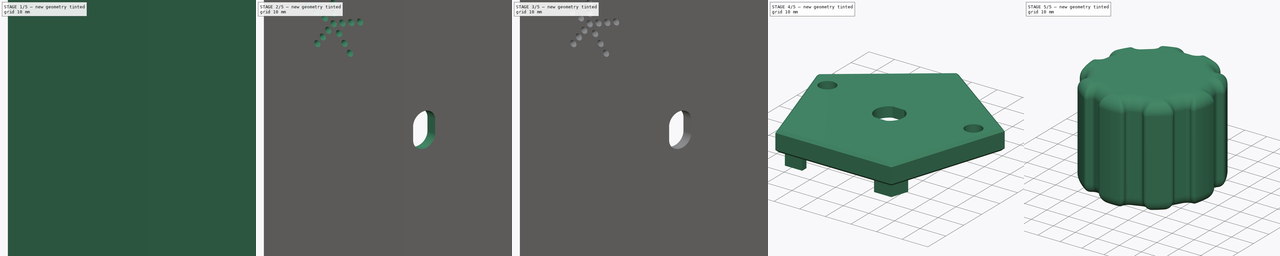
[diagram: build sequence overview — one tinted view per stage of 5, left to right]
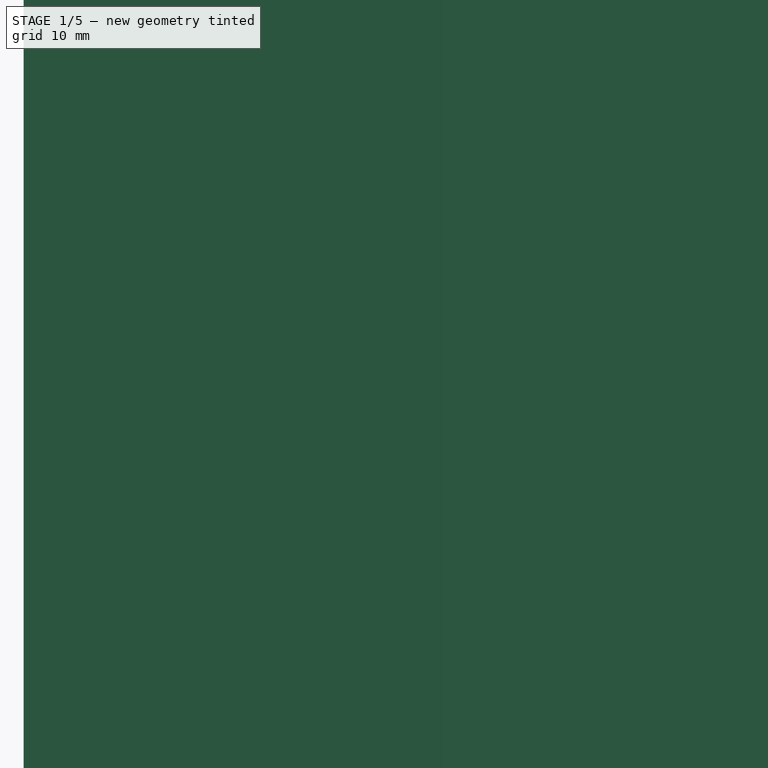
[diagram: stage 1 of 5 — iso view after this stage's code; geometry added in this stage tinted green]
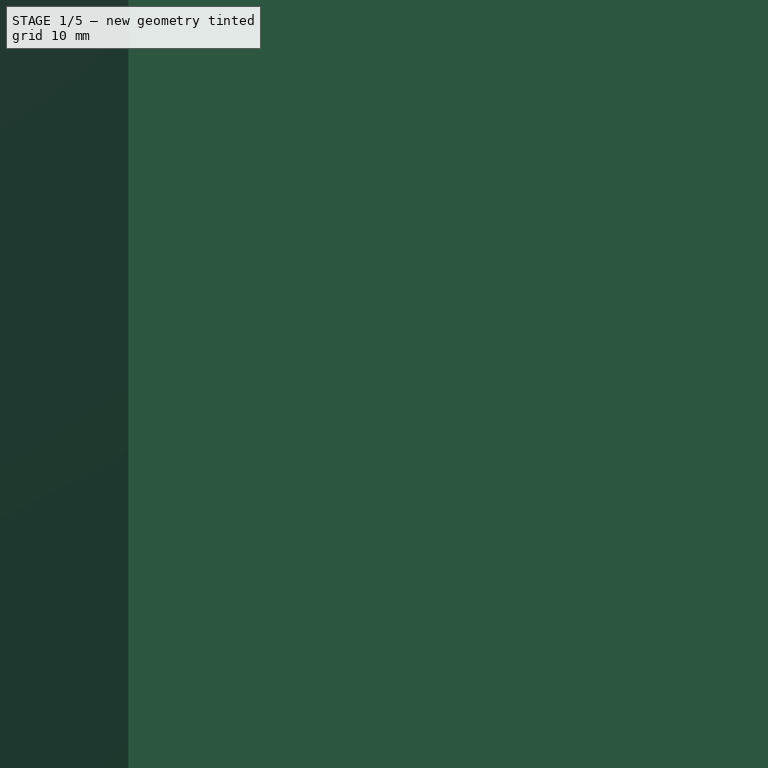
[diagram: stage 1 of 5 — front view after this stage's code; geometry added in this stage tinted green]
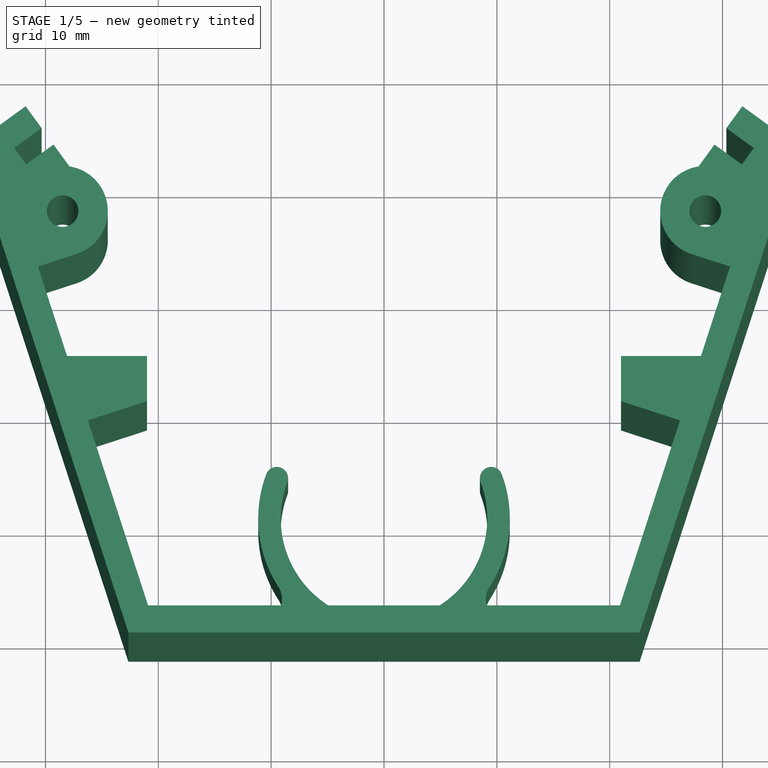
[diagram: stage 1 of 5 — top view after this stage's code; geometry added in this stage tinted green]
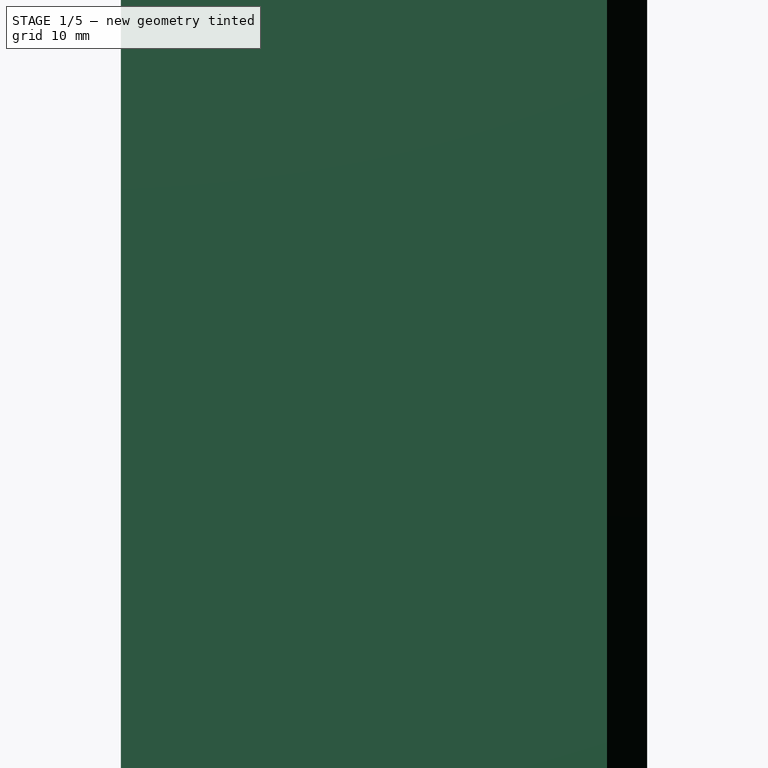
[diagram: stage 1 of 5 — right view after this stage's code; geometry added in this stage tinted green]
FCSTD DOCUMENT  (FreeCAD 0.18.3R)
Label: pong-behuizing
License: CreativeCommons Attribution
LicenseURL: http://creativecommons.org/licenses/by/4.0/
objects: Sketcher::SketchObject×28, PartDesign::Pocket×17, PartDesign::Pad×10, PartDesign::Chamfer×6, PartDesign::Body×4, PartDesign::ShapeBinder×3, PartDesign::PolarPattern×2, PartDesign::Fillet×2, PartDesign::Line×1
note: 100 computed .brp shape members not serialized (recipe doc carries the construction recipe); baked Part::Feature solids carry a one-line shape summary decoded from their .brp

FEATURE [Sketcher::SketchObject] Sketch
  MapMode = 5
  Support = -> [XY_Plane]
  sketch-geometry (12):
    g0: LineSegment StartX=0 StartY=38.537 StartZ=0 EndX=-36.6509 EndY=11.9086 EndZ=0
    g1: LineSegment StartX=-36.6509 StartY=11.9086 StartZ=0 EndX=-22.6515 EndY=-31.1771 EndZ=0
    g2: LineSegment StartX=-22.6515 StartY=-31.1771 StartZ=0 EndX=22.6515 EndY=-31.1771 EndZ=0
    g3: LineSegment StartX=22.6515 StartY=-31.1771 StartZ=0 EndX=36.6509 EndY=11.9086 EndZ=0
    g4: LineSegment StartX=36.6509 StartY=11.9086 StartZ=0 EndX=0 EndY=38.537 EndZ=0
    g5: Circle [constr] CenterX=0 CenterY=0 CenterZ=0 NormalX=0 NormalY=0 NormalZ=1 AngleXU=0 Radius=38.537
    g6: LineSegment [constr] StartX=0 StartY=33.3455 StartZ=0 EndX=-31.7135 EndY=10.3043 EndZ=0
    g7: LineSegment [constr] StartX=-31.7135 StartY=10.3043 StartZ=0 EndX=-19.6 EndY=-26.9771 EndZ=0
    g8: LineSegment [constr] StartX=-19.6 StartY=-26.9771 StartZ=0 EndX=19.6 EndY=-26.9771 EndZ=0
    g9: LineSegment [constr] StartX=19.6 StartY=-26.9771 StartZ=0 EndX=31.7135 EndY=10.3043 EndZ=0
    g10: LineSegment [constr] StartX=31.7135 StartY=10.3043 StartZ=0 EndX=0 EndY=33.3455 EndZ=0
    g11: Circle [constr] CenterX=0 CenterY=0 CenterZ=0 NormalX=0 NormalY=0 NormalZ=1 AngleXU=0 Radius=33.3455
  constraints (28):
    c: Coincident(g0,g1)
    c: Coincident(g1,g2)
    c: Coincident(g2,g3)
    c: Coincident(g3,g4)
    c: Coincident(g4,g0)
    c: Equal(g0, g1-g4) x4
    c: PointOnObject(g0,g5)
    c: PointOnObject(g1,g5)
    c: PointOnObject(g2,g5)
    c: PointOnObject(g3,g5)
    c: PointOnObject(g4,g5)
    c: Coincident(g5,g-1)
    c: PointOnObject(g4,g-2)
    c: Coincident(g6,g7)
    c: Coincident(g7,g8)
    c: Coincident(g8,g9)
    c: Coincident(g9,g10)
    c: Coincident(g10,g6)
    c: Equal(g6, g7-g10) x4
    c: PointOnObject(g6,g11)
    c: PointOnObject(g7,g11)
    c: PointOnObject(g8,g11)
    c: PointOnObject(g9,g11)
    c: PointOnObject(g10,g11)
    c: Coincident(g11,g-1)
    c: PointOnObject(g6,g-2)
    c: Distance(g10) = 39.2
    c: DistanceY(g1,g7) = 4.2
FEATURE [PartDesign::Pad] Pad
  Length = 8
  Length2 = 100
  Profile = -> Sketch
  Refine = true
  Type = 0
FEATURE [Sketcher::SketchObject] Sketch001
  ExternalGeometry = -> [Pad]
  MapMode = 5
  Placement = pos=(0,0,8) rot=(0,0,1;0rad)
  Support = -> [Pad]
  sketch-geometry (7):
    g0: LineSegment StartX=-32.7715 StartY=11.7606 StartZ=0 EndX=0 EndY=35.5704 EndZ=0
    g1: LineSegment StartX=0 StartY=35.5704 StartZ=0 EndX=32.7715 EndY=11.7606 EndZ=0
    g2: LineSegment StartX=32.7715 StartY=11.7606 StartZ=0 EndX=31.7135 EndY=10.3043 EndZ=0
    g3: LineSegment StartX=31.7135 StartY=10.3043 StartZ=0 EndX=0 EndY=33.3455 EndZ=0
    g4: LineSegment StartX=0 StartY=33.3455 StartZ=0 EndX=-31.7135 EndY=10.3043 EndZ=0
    g5: LineSegment StartX=-31.7135 StartY=10.3043 StartZ=0 EndX=-32.7715 EndY=11.7606 EndZ=0
    g6: LineSegment [constr] StartX=-32.7715 StartY=11.7606 StartZ=0 EndX=-34.1822 EndY=13.7022 EndZ=0
  constraints (21):
    c: Coincident(g0,g1)
    c: Coincident(g1,g2)
    c: Coincident(g2,g3)
    c: Coincident(g3,g4)
    c: Coincident(g4,g5)
    c: Coincident(g5,g0)
    c: PointOnObject(g3,g-2)
    c: PointOnObject(g0,g-2)
    c: Parallel(g1,g-4)
    c: Parallel(g1,g3)
    c: Parallel(g-3,g0)
    c: Parallel(g4,g-3)
    c: Perpendicular(g4,g5)
    c: Perpendicular(g3,g2)
    c: Equal(g3,g4)
    c: Distance(g4) = 39.2
    c: Distance(g5) = 1.8
    c: Coincident(g6,g0)
    c: PointOnObject(g6,g-3)
    c: Perpendicular(g0,g6)
    c: Distance(g6) = 2.4
FEATURE [PartDesign::Pocket] Pocket
  BaseFeature = -> Pad
  Length = 4
  Length2 = 100
  Profile = -> Sketch001
  Refine = true
  Type = 0
FEATURE [Sketcher::SketchObject] Sketch002
  ExternalGeometry = -> [Pocket]
  MapMode = 5
  Placement = pos=(0,0,8) rot=(0,0,1;0rad)
  Support = -> [Pocket]
  sketch-geometry (7):
    g0: LineSegment StartX=0 StartY=30.3789 StartZ=0 EndX=-28.8921 EndY=9.38761 EndZ=0
    g1: LineSegment StartX=-28.8921 StartY=9.38761 StartZ=0 EndX=-17.8563 EndY=-24.5771 EndZ=0
    g2: LineSegment StartX=-17.8563 StartY=-24.5771 StartZ=0 EndX=17.8563 EndY=-24.5771 EndZ=0
    g3: LineSegment StartX=17.8563 StartY=-24.5771 StartZ=0 EndX=28.8921 EndY=9.38761 EndZ=0
    g4: LineSegment StartX=28.8921 StartY=9.38761 StartZ=0 EndX=0 EndY=30.3789 EndZ=0
    g5: Circle [constr] CenterX=0 CenterY=0 CenterZ=0 NormalX=0 NormalY=0 NormalZ=1 AngleXU=0 Radius=30.3789
    g6: LineSegment [constr] StartX=-28.8921 StartY=9.38761 StartZ=0 EndX=-30.3028 EndY=11.3293 EndZ=0
  constraints (17):
    c: Coincident(g0,g1)
    c: Coincident(g1,g2)
    c: Coincident(g2,g3)
    c: Coincident(g3,g4)
    c: Coincident(g4,g0)
    c: Equal(g0, g1-g4) x4
    c: PointOnObject(g0,g5)
    c: PointOnObject(g1,g5)
    c: PointOnObject(g2,g5)
    c: PointOnObject(g3,g5)
    c: PointOnObject(g4,g5)
    c: Coincident(g5,g-1)
    c: PointOnObject(g4,g-2)
    c: Coincident(g6,g0)
    c: PointOnObject(g6,g-3)
    c: Perpendicular(g6,g-3)
    c: Distance(g6) = 2.4
FEATURE [PartDesign::Pocket] Pocket001
  BaseFeature = -> Pocket
  Length = 3
  Length2 = 100
  Profile = -> Sketch002
  Refine = true
  Type = 0
FEATURE [Sketcher::SketchObject] Sketch003
  MapMode = 5
  Placement = pos=(0,0,5) rot=(0,0,1;0rad)
  Support = -> [Pocket001]
  sketch-geometry (4):
    g0: ArcOfCircle CenterX=0 CenterY=0 CenterZ=0 NormalX=0 NormalY=0 NormalZ=1 AngleXU=0 Radius=5.5 StartAngle=2.18335 EndAngle=4.09983
    g1: ArcOfCircle CenterX=0 CenterY=0 CenterZ=0 NormalX=0 NormalY=0 NormalZ=1 AngleXU=0 Radius=5.5 StartAngle=5.32494 EndAngle=7.24143
    g2: LineSegment StartX=-3.16228 StartY=4.5 StartZ=0 EndX=3.16228 EndY=4.5 EndZ=0
    g3: LineSegment StartX=3.16228 StartY=-4.5 StartZ=0 EndX=-3.16228 EndY=-4.5 EndZ=0
  constraints (12):
    c: Coincident(g0,g-1)
    c: Coincident(g1,g0)
    c: Coincident(g2,g0)
    c: Horizontal(g2)
    c: Coincident(g3,g1)
    c: Horizontal(g3)
    c: Coincident(g0,g3)
    c: Coincident(g1,g2)
    c: Equal(g1,g0)
    c: Equal(g3,g2)
    c: DistanceY(g1,g1) = 9
    c: Radius(g1) = 5.5
FEATURE [PartDesign::Pocket] Pocket002
  BaseFeature = -> Pocket001
  Length = 5
  Length2 = 100
  Profile = -> Sketch003
  Refine = true
  Type = 0
FEATURE [Sketcher::SketchObject] Sketch004
  MapMode = 5
  Placement = pos=(0,0,5) rot=(0,0,1;0rad)
  Support = -> [Pocket002]
  sketch-geometry (4):
    g0: LineSegment StartX=-8.25 StartY=8.25 StartZ=0 EndX=8.25 EndY=8.25 EndZ=0
    g1: LineSegment StartX=8.25 StartY=8.25 StartZ=0 EndX=8.25 EndY=-8.25 EndZ=0
    g2: LineSegment StartX=8.25 StartY=-8.25 StartZ=0 EndX=-8.25 EndY=-8.25 EndZ=0
    g3: LineSegment StartX=-8.25 StartY=-8.25 StartZ=0 EndX=-8.25 EndY=8.25 EndZ=0
  constraints (11):
    c: Coincident(g0,g1)
    c: Coincident(g1,g2)
    c: Coincident(g2,g3)
    c: Coincident(g3,g0)
    c: Horizontal(g0)
    c: Horizontal(g2)
    c: Vertical(g1)
    c: Vertical(g3)
    c: Symmetric(g0,g1,g-1)
    c: Equal(g1,g0)
    c: DistanceX(g0,g0) = 16.5
FEATURE [PartDesign::Pocket] Pocket003
  BaseFeature = -> Pocket002
  Length = 1
  Length2 = 100
  Profile = -> Sketch004
  Refine = true
  Type = 0
FEATURE [PartDesign::Body] Body
  Group = -> [Sketch,Pad,Sketch001,Pocket,Sketch002,Pocket001,Sketch003,Pocket002,Sketch004,Pocket003]
  Origin = -> Origin
  Tip = -> Pocket003
FEATURE [PartDesign::ShapeBinder] ShapeBinder
  Support = -> [Pocket003]
  TraceSupport = false
FEATURE [Sketcher::SketchObject] Sketch005
  ExternalGeometry = -> [ShapeBinder]
  MapMode = 5
  Placement = pos=(0,0,8) rot=(0,0,1;0rad)
  Support = -> [ShapeBinder]
  sketch-geometry (47):
    g0: LineSegment StartX=-30.6658 StartY=1.25497 StartZ=0 EndX=-28.0885 EndY=-6.67709 EndZ=0
    g1: LineSegment StartX=-20.9078 StartY=-28.7771 StartZ=0 EndX=-11.0363 EndY=-28.7771 EndZ=0
    g2: LineSegment StartX=20.9078 StartY=-28.7771 StartZ=0 EndX=26.236 EndY=-12.3784 EndZ=0
    g3: LineSegment StartX=27.8757 StartY=10.126 StartZ=0 EndX=29.2864 EndY=12.0677 EndZ=0
    g4: LineSegment StartX=29.2864 StartY=12.0677 StartZ=0 EndX=31.7135 EndY=10.3043 EndZ=0
    g5: LineSegment StartX=31.7135 StartY=10.3043 StartZ=0 EndX=32.7715 EndY=11.7606 EndZ=0
    g6: LineSegment StartX=32.7715 StartY=11.7606 StartZ=0 EndX=30.3444 EndY=13.5239 EndZ=0
    g7: LineSegment StartX=30.3444 StartY=13.5239 StartZ=0 EndX=31.7551 EndY=15.4656 EndZ=0
    g8: LineSegment StartX=31.7551 StartY=15.4656 StartZ=0 EndX=36.6509 EndY=11.9086 EndZ=0
    g9: LineSegment StartX=36.6509 StartY=11.9086 StartZ=0 EndX=22.6515 EndY=-31.1771 EndZ=0
    g10: LineSegment StartX=22.6515 StartY=-31.1771 StartZ=0 EndX=-22.6515 EndY=-31.1771 EndZ=0
    g11: LineSegment StartX=-22.6515 StartY=-31.1771 StartZ=0 EndX=-36.6509 EndY=11.9086 EndZ=0
    g12: LineSegment StartX=-36.6509 StartY=11.9086 StartZ=0 EndX=-31.7551 EndY=15.4656 EndZ=0
    g13: LineSegment StartX=-31.7551 StartY=15.4656 StartZ=0 EndX=-30.3444 EndY=13.5239 EndZ=0
    g14: LineSegment StartX=-30.3444 StartY=13.5239 StartZ=0 EndX=-32.7715 EndY=11.7606 EndZ=0
    g15: LineSegment StartX=-32.7715 StartY=11.7606 StartZ=0 EndX=-31.7135 EndY=10.3043 EndZ=0
    g16: LineSegment StartX=-31.7135 StartY=10.3043 StartZ=0 EndX=-29.2864 EndY=12.0677 EndZ=0
    g17: LineSegment StartX=-29.2864 StartY=12.0677 StartZ=0 EndX=-27.8757 EndY=10.126 EndZ=0
    g18: LineSegment [constr] StartX=-30.6658 StartY=1.25497 StartZ=0 EndX=-32.9483 EndY=0.513325 EndZ=0
    g19: LineSegment [constr] StartX=-27 StartY=-4.17709 StartZ=0 EndX=27 EndY=-4.17709 EndZ=0
    g20: LineSegment [constr] StartX=27 StartY=-4.17709 StartZ=0 EndX=27 EndY=-5.77709 EndZ=0
    g21: LineSegment [constr] StartX=27 StartY=-5.77709 StartZ=0 EndX=-27 EndY=-5.77709 EndZ=0
    g22: LineSegment [constr] StartX=-27 StartY=-5.77709 StartZ=0 EndX=-27 EndY=-4.17709 EndZ=0
    g23: LineSegment StartX=-28.0885 StartY=-6.67709 StartZ=0 EndX=-21 EndY=-6.67709 EndZ=0
    g24: LineSegment StartX=-21 StartY=-6.67709 StartZ=0 EndX=-21 EndY=-10.6771 EndZ=0
    g25: LineSegment StartX=-21 StartY=-10.6771 StartZ=0 EndX=-26.236 EndY=-12.3784 EndZ=0
    g26: LineSegment StartX=28.0885 StartY=-6.67709 StartZ=0 EndX=21 EndY=-6.67709 EndZ=0
    g27: LineSegment StartX=21 StartY=-6.67709 StartZ=0 EndX=21 EndY=-10.6771 EndZ=0
    g28: LineSegment StartX=21 StartY=-10.6771 StartZ=0 EndX=26.236 EndY=-12.3784 EndZ=0
    g29: LineSegment StartX=-26.236 StartY=-12.3784 StartZ=0 EndX=-20.9078 EndY=-28.7771 EndZ=0
    g30: LineSegment StartX=28.0885 StartY=-6.67709 StartZ=0 EndX=30.6658 EndY=1.25497 EndZ=0
    g31: ArcOfCircle CenterX=0 CenterY=-19.6271 CenterZ=0 NormalX=0 NormalY=0 NormalZ=1 AngleXU=0 Radius=9.15 StartAngle=2.78177 EndAngle=6.643
    g32: ArcOfCircle CenterX=9.5 CenterY=-16.0532 CenterZ=0 NormalX=0 NormalY=0 NormalZ=1 AngleXU=0 Radius=1 StartAngle=0.359819 EndAngle=3.50141
    g33: ArcOfCircle CenterX=0 CenterY=-19.6271 CenterZ=0 NormalX=0 NormalY=0 NormalZ=1 AngleXU=0 Radius=11.15 StartAngle=5.70831 EndAngle=6.643
    g34: ArcOfCircle CenterX=11.0363 CenterY=-26.7771 CenterZ=0 NormalX=0 NormalY=0 NormalZ=1 AngleXU=0 Radius=2 StartAngle=2.56672 EndAngle=4.71239
    g35: ArcOfCircle CenterX=-9.5 CenterY=-16.0532 CenterZ=0 NormalX=0 NormalY=0 NormalZ=1 AngleXU=0 Radius=1 StartAngle=5.92337 EndAngle=9.06496
    g36: ArcOfCircle CenterX=0 CenterY=-19.6271 CenterZ=0 NormalX=0 NormalY=0 NormalZ=1 AngleXU=0 Radius=11.15 StartAngle=2.78177 EndAngle=3.71646
    g37: ArcOfCircle CenterX=-11.0363 CenterY=-26.7771 CenterZ=0 NormalX=0 NormalY=0 NormalZ=1 AngleXU=0 Radius=2 StartAngle=4.71239 EndAngle=6.85806
    g38: LineSegment StartX=11.0363 StartY=-28.7771 StartZ=0 EndX=20.9078 EndY=-28.7771 EndZ=0
    g39: LineSegment [constr] StartX=-11.0363 StartY=-28.7771 StartZ=0 EndX=11.0363 EndY=-28.7771 EndZ=0
    g40: Circle CenterX=-28.478 CenterY=6.17165 CenterZ=0 NormalX=0 NormalY=0 NormalZ=1 AngleXU=0 Radius=1.4
    g41: ArcOfCircle CenterX=-28.478 CenterY=6.17165 CenterZ=0 NormalX=0 NormalY=0 NormalZ=1 AngleXU=0 Radius=4 StartAngle=5.02655 EndAngle=7.70283
    g42: LineSegment [constr] StartX=-28.478 StartY=6.17165 StartZ=0 EndX=-34.1844 EndY=4.31755 EndZ=0
    g43: LineSegment StartX=-27.242 StartY=2.36743 StartZ=0 EndX=-30.6658 EndY=1.25497 EndZ=0
    g44: Circle CenterX=28.478 CenterY=6.17165 CenterZ=0 NormalX=0 NormalY=0 NormalZ=1 AngleXU=0 Radius=1.4
    g45: LineSegment StartX=30.6658 StartY=1.25497 StartZ=0 EndX=27.242 EndY=2.36743 EndZ=0
    g46: ArcOfCircle CenterX=28.478 CenterY=6.17165 CenterZ=0 NormalX=0 NormalY=0 NormalZ=1 AngleXU=0 Radius=4 StartAngle=1.72195 EndAngle=4.39823
  constraints (120):
    c: Coincident(g29,g1)
    c: Coincident(g38,g2)
    c: PointOnObject(g3,g-13)
    c: Coincident(g3,g4)
    c: Coincident(g4,g5)
    c: Coincident(g5,g-12)
    c: Coincident(g5,g6)
    c: PointOnObject(g6,g-11)
    c: Coincident(g6,g7)
    c: PointOnObject(g7,g-10)
    c: Coincident(g7,g8)
    c: Coincident(g8,g-10)
    c: Coincident(g8,g9)
    c: PointOnObject(g9,g-8)
    c: Coincident(g9,g10)
    c: Coincident(g10,g-8)
    c: Coincident(g10,g11)
    c: Coincident(g11,g-7)
    c: Coincident(g11,g12)
    c: PointOnObject(g12,g-6)
    c: Coincident(g12,g13)
    c: Coincident(g13,g14)
    c: Coincident(g14,g-5)
    c: Coincident(g14,g15)
    c: Coincident(g15,g16)
    c: Coincident(g16,g17)
    c: Equal(g14,g16)
    c: Equal(g16,g4)
    c: Equal(g4,g6)
    c: Coincident(g15,g-4)
    c: PointOnObject(g16,g-3)
    c: PointOnObject(g13,g-5)
    c: Perpendicular(g12,g13)
    c: Perpendicular(g16,g17)
    c: Parallel(g11,g0)
    c: Parallel(g2,g9)
    c: Perpendicular(g7,g8)
    c: Coincident(g4,g-13)
    c: Perpendicular(g3,g4)
    c: Symmetric(g29,g38,g-2)
    c: Equal(g17,g13)
    c: Equal(g13,g3)
    c: Distance(g14) = 3
    c: Coincident(g18,g0)
    c: PointOnObject(g18,g11)
    c: Perpendicular(g0,g18)
    c: DistanceY(g10,g29) = 2.4
    c: Distance(g18) = 2.4
    c: Coincident(g19,g20)
    c: Coincident(g20,g21)
    c: Coincident(g21,g22)
    c: Coincident(g22,g19)
    c: Horizontal(g21)
    c: Vertical(g20)
    c: Vertical(g22)
    c: Symmetric(g19,g19,g-2)
    c: DistanceX(g19,g19) = 54
    c: DistanceY(g22,g22) = 1.6
    c: DistanceY(g38,g20) = 23
    c: Horizontal(g23)
    c: Coincident(g23,g24)
    c: Coincident(g24,g25)
    c: Horizontal(g26)
    c: Coincident(g26,g27)
    c: Coincident(g27,g28)
    c: DistanceX(g21,g23) = 6
    c: Equal(g23,g26)
    c: Vertical(g24)
    c: Vertical(g27)
    c: Equal(g27,g24)
    c: Equal(g25,g28)
    c: Symmetric(g26,g23,g-2)
    c: Coincident(g0,g23)
    c: Coincident(g29,g25)
    c: Tangent(g0,g29)
    c: Coincident(g2,g28)
    c: Coincident(g30,g26)
    c: Tangent(g2,g30)
    c: DistanceY(g23,g21) = 0.9
    c: Perpendicular(g29,g25)
    c: DistanceY(g24,g24) = 4
    c: PointOnObject(g31,g-2)
    c: Coincident(g36,g33)
    c: Coincident(g1,g37)
    c: Tangent(g1,g38)
    c: Symmetric(g34,g37,g-2)
    c: Tangent(g38,g34) = -1.5708
    c: Tangent(g37,g36) = 1.5708
    c: Tangent(g34,g33) = 1.5708
    c: Tangent(g33,g32) = -1.5708
    c: Tangent(g32,g31) = 1.5708
    c: Tangent(g35,g31) = 1.5708
    c: Tangent(g36,g35) = -1.5708
    c: Coincident(g33,g31)
    c: Coincident(g39,g1)
    c: Tangent(g31,g39)
    c: Radius(g31) = 9.15
    c: Radius(g35) = 1
    c: Symmetric(g35,g32,g-2)
    c: Radius(g37) = 2
    c: DistanceX(g35,g32) = 19
    c: Coincident(g39,g34)
    c: Coincident(g41,g40)
    c: Coincident(g41,g17)
    c: Coincident(g42,g40)
    c: PointOnObject(g42,g11)
    c: Perpendicular(g11,g42)
    c: Distance(g42) = 6
    c: Radius(g40) = 1.4
    c: Radius(g41) = 4
    c: Tangent(g43,g41) = 1.5708
    c: Perpendicular(g0,g43)
    c: Coincident(g0,g43)
    c: Coincident(g45,g30)
    c: Coincident(g46,g44)
    c: Coincident(g46,g3)
    c: Symmetric(g40,g44,g-2)
    c: Equal(g40,g44)
    c: Perpendicular(g30,g45)
    c: Tangent(g46,g45) = 1.5708
FEATURE [PartDesign::Pad] Pad001
  Length = 149
  Length2 = 100
  Profile = -> Sketch005
  Refine = true
  Type = 0
FEATURE [Sketcher::SketchObject] Sketch006
  ExternalGeometry = -> [Pad001]
  MapMode = 5
  Placement = pos=(0,0,157) rot=(0,0,1;0rad)
  Support = -> [Pad001]
  sketch-geometry (4):
    g0: LineSegment StartX=-11.15 StartY=-15.0532 StartZ=0 EndX=11.15 EndY=-15.0532 EndZ=0
    g1: LineSegment StartX=11.15 StartY=-15.0532 StartZ=0 EndX=11.15 EndY=-28.7771 EndZ=0
    g2: LineSegment StartX=11.15 StartY=-28.7771 StartZ=0 EndX=-11.15 EndY=-28.7771 EndZ=0
    g3: LineSegment StartX=-11.15 StartY=-28.7771 StartZ=0 EndX=-11.15 EndY=-15.0532 EndZ=0
  constraints (11):
    c: Coincident(g0,g1)
    c: Coincident(g1,g2)
    c: Coincident(g2,g3)
    c: Coincident(g3,g0)
    c: Horizontal(g2)
    c: Vertical(g1)
    c: Vertical(g3)
    c: Symmetric(g0,g0,g-2)
    c: Tangent(g0,g-5)
    c: PointOnObject(g2,g-3)
    c: Tangent(g3,g-4)
FEATURE [PartDesign::Pocket] Pocket004
  BaseFeature = -> Pad001
  Length = 83
  Length2 = 100
  Profile = -> Sketch006
  Refine = true
  Type = 0
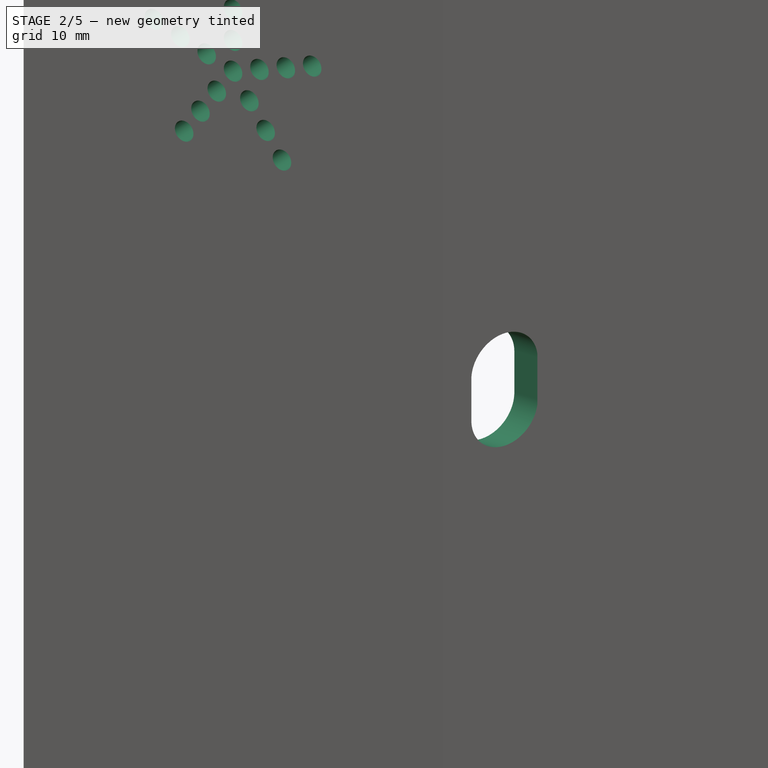
[diagram: stage 2 of 5 — iso view after this stage's code; geometry added in this stage tinted green]
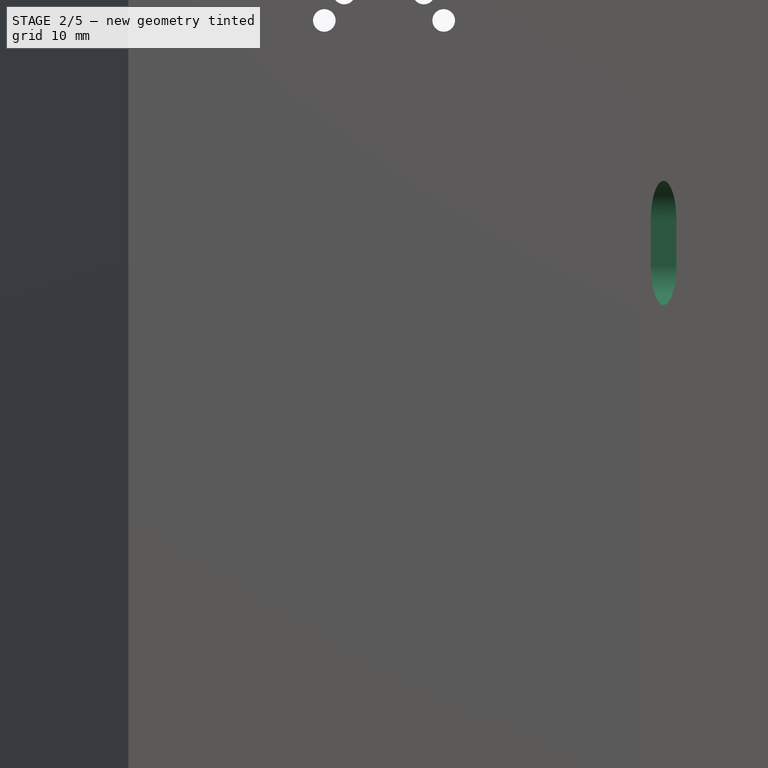
[diagram: stage 2 of 5 — front view after this stage's code; geometry added in this stage tinted green]
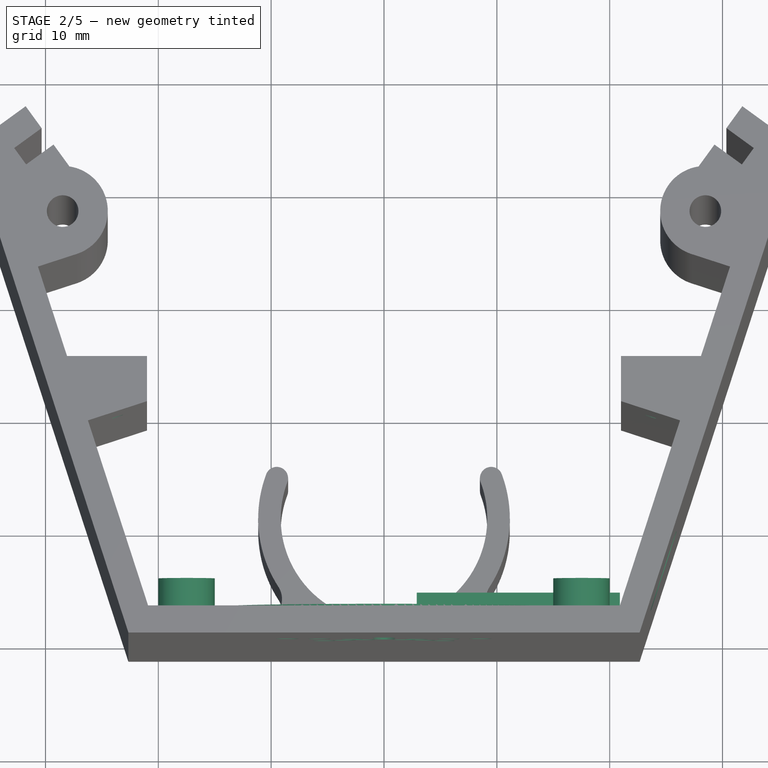
[diagram: stage 2 of 5 — top view after this stage's code; geometry added in this stage tinted green]
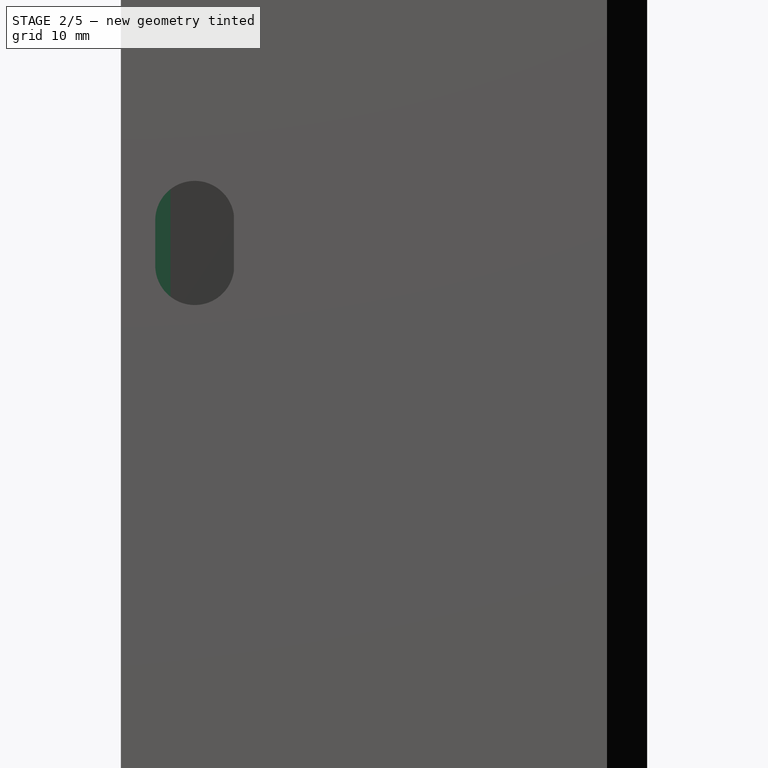
[diagram: stage 2 of 5 — right view after this stage's code; geometry added in this stage tinted green]
FEATURE [Sketcher::SketchObject] Sketch007
  ExternalGeometry = -> [Pocket004]
  MapMode = 5
  Placement = pos=(0,-6.67709,0) rot=(0,0.707107,0.707107;3.14159rad)
  Support = -> [Pocket004]
  sketch-geometry (6):
    g0: Circle CenterX=-24.1 CenterY=127 CenterZ=0 NormalX=0 NormalY=0 NormalZ=1 AngleXU=0 Radius=1
    g1: Circle CenterX=24.1 CenterY=127 CenterZ=0 NormalX=0 NormalY=0 NormalZ=1 AngleXU=0 Radius=1
    g2: LineSegment [constr] StartX=-26.55 StartY=149.1 StartZ=0 EndX=26.55 EndY=149.1 EndZ=0
    g3: LineSegment [constr] StartX=26.55 StartY=149.1 StartZ=0 EndX=26.55 EndY=72.4 EndZ=0
    g4: LineSegment [constr] StartX=26.55 StartY=72.4 StartZ=0 EndX=-26.55 EndY=72.4 EndZ=0
    g5: LineSegment [constr] StartX=-26.55 StartY=72.4 StartZ=0 EndX=-26.55 EndY=149.1 EndZ=0
  constraints (16):
    c: Symmetric(g0,g1,g-2)
    c: Radius(g0) = 1
    c: Equal(g1,g0)
    c: DistanceX(g0,g1) = 48.2
    c: DistanceY(g0,g-3) = 30
    c: Coincident(g2,g3)
    c: Coincident(g3,g4)
    c: Coincident(g4,g5)
    c: Coincident(g5,g2)
    c: Horizontal(g4)
    c: Vertical(g3)
    c: Vertical(g5)
    c: DistanceX(g2,g2) = 53.1
    c: DistanceY(g5,g5) = 76.7
    c: DistanceY(g4,g0) = 54.6
    c: Symmetric(g2,g2,g-2)
FEATURE [PartDesign::Pocket] Pocket005
  BaseFeature = -> Pocket004
  Length = 5
  Length2 = 100
  Profile = -> Sketch007
  Refine = true
  Type = 0
FEATURE [Sketcher::SketchObject] Sketch008
  ExternalGeometry = -> [Pocket005]
  MapMode = 5
  Placement = pos=(-3.22e-14,-28.7771,-6.6e-15) rot=(0,0.707107,0.707107;3.14159rad)
  Support = -> [Pocket005]
  sketch-geometry (4):
    g0: LineSegment StartX=-20.9078 StartY=83 StartZ=0 EndX=-2.90778 EndY=83 EndZ=0
    g1: LineSegment StartX=-2.90778 StartY=83 StartZ=0 EndX=-2.90778 EndY=107 EndZ=0
    g2: LineSegment StartX=-2.90778 StartY=107 StartZ=0 EndX=-20.9078 EndY=107 EndZ=0
    g3: LineSegment StartX=-20.9078 StartY=107 StartZ=0 EndX=-20.9078 EndY=83 EndZ=0
  constraints (12):
    c: Coincident(g0,g1)
    c: Coincident(g1,g2)
    c: Coincident(g2,g3)
    c: Coincident(g3,g0)
    c: Horizontal(g0)
    c: Horizontal(g2)
    c: Vertical(g1)
    c: Vertical(g3)
    c: PointOnObject(g0,g-3)
    c: DistanceX(g0,g0) = 18
    c: DistanceY(g1,g1) = 24
    c: DistanceY(g-4,g0) = 9
FEATURE [PartDesign::Pad] Pad002
  BaseFeature = -> Pocket005
  Length = 2
  Length2 = 100
  Profile = -> Sketch008
  Refine = true
  Type = 0
FEATURE [Sketcher::SketchObject] Sketch009
  ExternalGeometry = -> [Pad002]
  MapMode = 5
  Placement = pos=(-2.91e-14,-26.7771,-5.9e-15) rot=(0,0.707107,0.707107;3.14159rad)
  Support = -> [Pad002]
  sketch-geometry (11):
    g0: Circle CenterX=-12.9078 CenterY=85 CenterZ=0 NormalX=0 NormalY=0 NormalZ=1 AngleXU=0 Radius=1
    g1: Circle CenterX=-12.9078 CenterY=105 CenterZ=0 NormalX=0 NormalY=0 NormalZ=1 AngleXU=0 Radius=1
    g2: LineSegment StartX=-2.90778 StartY=90 StartZ=0 EndX=-10.9078 EndY=90 EndZ=0
    g3: LineSegment StartX=-10.9078 StartY=90 StartZ=0 EndX=-10.9078 EndY=100 EndZ=0
    g4: LineSegment StartX=-10.9078 StartY=100 StartZ=0 EndX=-2.90778 EndY=100 EndZ=0
    g5: LineSegment StartX=-2.90778 StartY=100 StartZ=0 EndX=-2.90778 EndY=90 EndZ=0
    g6: LineSegment [constr] StartX=-12.9078 StartY=83 StartZ=0 EndX=-12.9078 EndY=85 EndZ=0
    g7: LineSegment [constr] StartX=-12.9078 StartY=85 StartZ=0 EndX=-12.9078 EndY=105 EndZ=0
    g8: LineSegment [constr] StartX=-12.9078 StartY=105 StartZ=0 EndX=-12.9078 EndY=107 EndZ=0
    g9: LineSegment [constr] StartX=-10.9078 StartY=107 StartZ=0 EndX=-10.9078 EndY=100 EndZ=0
    g10: LineSegment [constr] StartX=-10.9078 StartY=90 StartZ=0 EndX=-10.9078 EndY=83 EndZ=0
  constraints (32):
    c: Coincident(g2,g3)
    c: Coincident(g3,g4)
    c: Coincident(g4,g5)
    c: Coincident(g5,g2)
    c: Horizontal(g2)
    c: Horizontal(g4)
    c: Vertical(g3)
    c: Vertical(g5)
    c: PointOnObject(g2,g-5)
    c: Equal(g0,g1)
    c: PointOnObject(g6,g-3)
    c: Coincident(g6,g0)
    c: Coincident(g7,g0)
    c: Coincident(g7,g1)
    c: Vertical(g7)
    c: Coincident(g8,g1)
    c: PointOnObject(g8,g-4)
    c: PointOnObject(g9,g-4)
    c: Coincident(g9,g3)
    c: Vertical(g9)
    c: Coincident(g10,g2)
    c: PointOnObject(g10,g-3)
    c: Vertical(g10)
    c: Vertical(g6)
    c: Equal(g6,g8)
    c: Equal(g10,g9)
    c: Radius(g0) = 1
    c: DistanceY(g7,g7) = 20
    c: DistanceX(g-3,g10) = 10
    c: DistanceY(g5,g5) = 10
    c: Vertical(g8)
    c: DistanceX(g-3,g6) = 8
FEATURE [PartDesign::Pocket] Pocket006
  BaseFeature = -> Pad002
  Length = 2
  Length2 = 100
  Profile = -> Sketch009
  Refine = true
  Type = 0
FEATURE [Sketcher::SketchObject] Sketch010
  ExternalGeometry = -> [Pocket006]
  MapMode = 5
  Placement = pos=(20.9078,-2.34e-14,0) rot=(0.57735,0.57735,0.57735;2.0944rad)
  Support = -> [Pocket006]
  sketch-geometry (10):
    g0: ArcOfCircle CenterX=-24.6271 CenterY=97 CenterZ=0 NormalX=0 NormalY=0 NormalZ=1 AngleXU=0 Radius=3.5 StartAngle=1.4e-15 EndAngle=3.14159
    g1: ArcOfCircle CenterX=-24.6271 CenterY=93 CenterZ=0 NormalX=0 NormalY=0 NormalZ=1 AngleXU=0 Radius=3.5 StartAngle=3.14159 EndAngle=6.28319
    g2: LineSegment StartX=-28.1271 StartY=97 StartZ=0 EndX=-28.1271 EndY=93 EndZ=0
    g3: LineSegment StartX=-21.1271 StartY=97 StartZ=0 EndX=-21.1271 EndY=93 EndZ=0
    g4: LineSegment [constr] StartX=-21.1271 StartY=100.5 StartZ=0 EndX=-28.1271 EndY=100.5 EndZ=0
    g5: LineSegment [constr] StartX=-28.1271 StartY=100.5 StartZ=0 EndX=-28.1271 EndY=89.5 EndZ=0
    g6: LineSegment [constr] StartX=-28.1271 StartY=89.5 StartZ=0 EndX=-21.1271 EndY=89.5 EndZ=0
    g7: LineSegment [constr] StartX=-21.1271 StartY=89.5 StartZ=0 EndX=-21.1271 EndY=100.5 EndZ=0
    g8: LineSegment [constr] StartX=-26.7771 StartY=107 StartZ=0 EndX=-24.6271 EndY=97 EndZ=0
    g9: LineSegment [constr] StartX=-24.6271 StartY=93 StartZ=0 EndX=-26.7771 EndY=83 EndZ=0
  constraints (26):
    c: Tangent(g0,g3) = 1.5708
    c: Tangent(g0,g2) = -1.5708
    c: Tangent(g2,g1) = -1.5708
    c: Tangent(g3,g1) = 1.5708
    c: Vertical(g2)
    c: Equal(g0,g1)
    c: DistanceX(g-3,g0) = 2.15
    c: DistanceX(g0,g0) = 7
    c: Coincident(g4,g5)
    c: Coincident(g5,g6)
    c: Coincident(g6,g7)
    c: Coincident(g7,g4)
    c: Horizontal(g4)
    c: Horizontal(g6)
    c: Vertical(g5)
    c: Vertical(g7)
    c: Tangent(g6,g1)
    c: Tangent(g4,g0)
    c: PointOnObject(g0,g7)
    c: PointOnObject(g0,g5)
    c: DistanceY(g7,g7) = 11
    c: Coincident(g8,g-3)
    c: Coincident(g8,g0)
    c: Coincident(g9,g1)
    c: Coincident(g9,g-3)
    c: Equal(g9,g8)
FEATURE [PartDesign::Pocket] Pocket007
  BaseFeature = -> Pocket006
  Length = 5
  Length2 = 100
  Profile = -> Sketch010
  Refine = true
  Reversed = true
  Type = 0
FEATURE [Sketcher::SketchObject] Sketch011
  ExternalGeometry = -> [Pocket007]
  MapMode = 5
  Placement = pos=(-2.85e-14,-28.7771,-8.1e-15) rot=(0,0.707107,0.707107;3.14159rad)
  Support = -> [Pocket007]
  sketch-geometry (2):
    g0: Circle CenterX=0 CenterY=122 CenterZ=0 NormalX=0 NormalY=0 NormalZ=1 AngleXU=0 Radius=13.5
    g1: Circle CenterX=0 CenterY=122 CenterZ=0 NormalX=0 NormalY=0 NormalZ=1 AngleXU=0 Radius=14.5
  constraints (5):
    c: PointOnObject(g0,g-2)
    c: Coincident(g1,g0)
    c: Radius(g0) = 13.5
    c: Radius(g1) = 14.5
    c: DistanceY(g0,g-3) = 35
FEATURE [PartDesign::Pad] Pad003
  BaseFeature = -> Pocket007
  Length = 0.5
  Length2 = 100
  Profile = -> Sketch011
  Refine = true
  Type = 0
FEATURE [Sketcher::SketchObject] Sketch012
  ExternalGeometry = -> [Pad003]
  MapMode = 5
  Placement = pos=(-2.85e-14,-28.7771,-8.1e-15) rot=(0,0.707107,0.707107;3.14159rad)
  Support = -> [Pad003]
  sketch-geometry (5):
    g0: Circle CenterX=-17.5 CenterY=122 CenterZ=0 NormalX=0 NormalY=0 NormalZ=1 AngleXU=0 Radius=1
    g1: Circle CenterX=-17.5 CenterY=122 CenterZ=0 NormalX=0 NormalY=0 NormalZ=1 AngleXU=0 Radius=2.5
    g2: Circle CenterX=17.5 CenterY=122 CenterZ=0 NormalX=0 NormalY=0 NormalZ=1 AngleXU=0 Radius=1
    g3: Circle CenterX=17.5 CenterY=122 CenterZ=0 NormalX=0 NormalY=0 NormalZ=1 AngleXU=0 Radius=2.5
    g4: LineSegment [constr] StartX=-17.5 StartY=122 StartZ=0 EndX=17.5 EndY=122 EndZ=0
  constraints (11):
    c: Coincident(g1,g0)
    c: Coincident(g3,g2)
    c: Equal(g3,g1)
    c: Equal(g0,g2)
    c: Radius(g2) = 1
    c: Radius(g1) = 2.5
    c: Symmetric(g0,g2,g-2)
    c: Coincident(g4,g0)
    c: Coincident(g4,g2)
    c: PointOnObject(g-3,g4)
    c: DistanceX(g4,g4) = 35
FEATURE [PartDesign::Pad] Pad004
  BaseFeature = -> Pad003
  Length = 3
  Length2 = 100
  Profile = -> Sketch012
  Refine = true
  Type = 0
FEATURE [Sketcher::SketchObject] Sketch013
  ExternalGeometry = -> [Pad004]
  MapMode = 5
  Placement = pos=(-2.85e-14,-28.7771,-8.1e-15) rot=(0,0.707107,0.707107;3.14159rad)
  Support = -> [Pad004]
  sketch-geometry (4):
    g0: Circle CenterX=0 CenterY=122 CenterZ=0 NormalX=0 NormalY=0 NormalZ=1 AngleXU=0 Radius=1
    g1: Circle CenterX=0 CenterY=125 CenterZ=0 NormalX=0 NormalY=0 NormalZ=1 AngleXU=0 Radius=1
    g2: Circle CenterX=0 CenterY=128 CenterZ=0 NormalX=0 NormalY=0 NormalZ=1 AngleXU=0 Radius=1
    g3: Circle CenterX=0 CenterY=131 CenterZ=0 NormalX=0 NormalY=0 NormalZ=1 AngleXU=0 Radius=1
  constraints (11):
    c: Coincident(g0,g-3)
    c: PointOnObject(g1,g-2)
    c: PointOnObject(g2,g-2)
    c: Equal(g2,g1)
    c: Equal(g1,g0)
    c: Radius(g2) = 1
    c: DistanceY(g0,g1) = 3
    c: DistanceY(g1,g2) = 3
    c: PointOnObject(g3,g-2)
    c: Equal(g3,g2)
    c: DistanceY(g2,g3) = 3
FEATURE [PartDesign::Pocket] Pocket008
  BaseFeature = -> Pad004
  Length = 5
  Length2 = 100
  Profile = -> Sketch013
  Refine = true
  Type = 0
FEATURE [PartDesign::Line] DatumLine
  AttacherType = Attacher::AttachEngineLine
  MapMode = 19
  Placement = pos=(-2.86e-14,-28.7771,122) rot=(0,0.707107,0.707107;3.14159rad)
  Support = -> [Pocket008]
FEATURE [PartDesign::PolarPattern] PolarPattern
  Angle = 360
  Axis = -> DatumLine
  BaseFeature = -> Pocket008
  Occurrences = 5
  Originals = -> [Pocket008]
  Refine = true
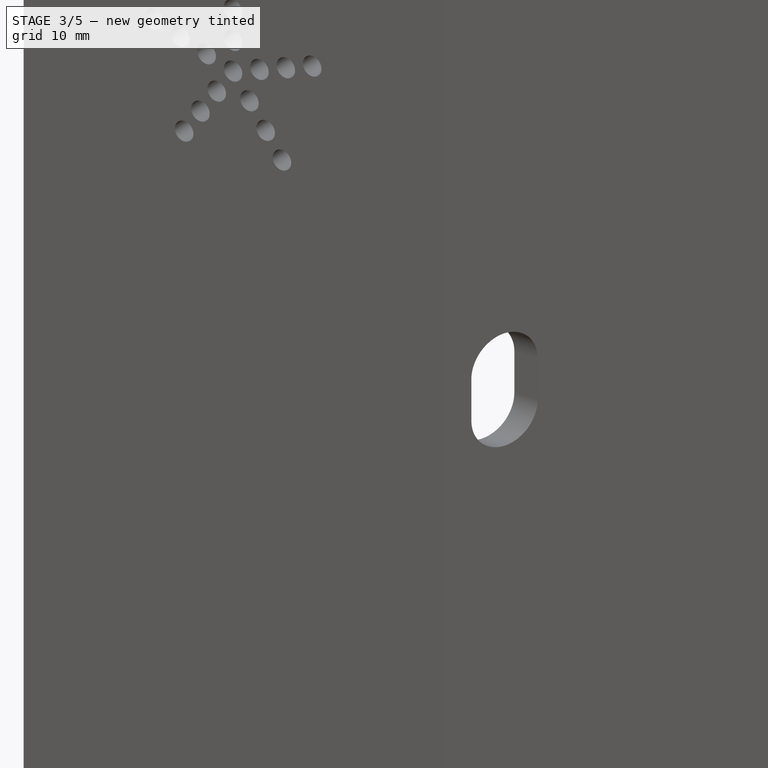
[diagram: stage 3 of 5 — iso view after this stage's code; geometry added in this stage tinted green]
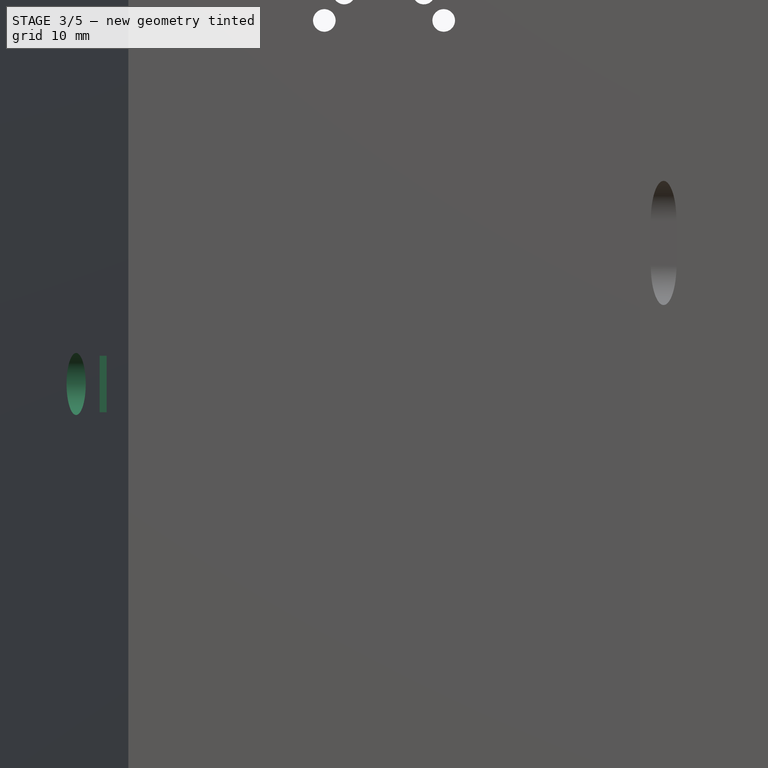
[diagram: stage 3 of 5 — front view after this stage's code; geometry added in this stage tinted green]
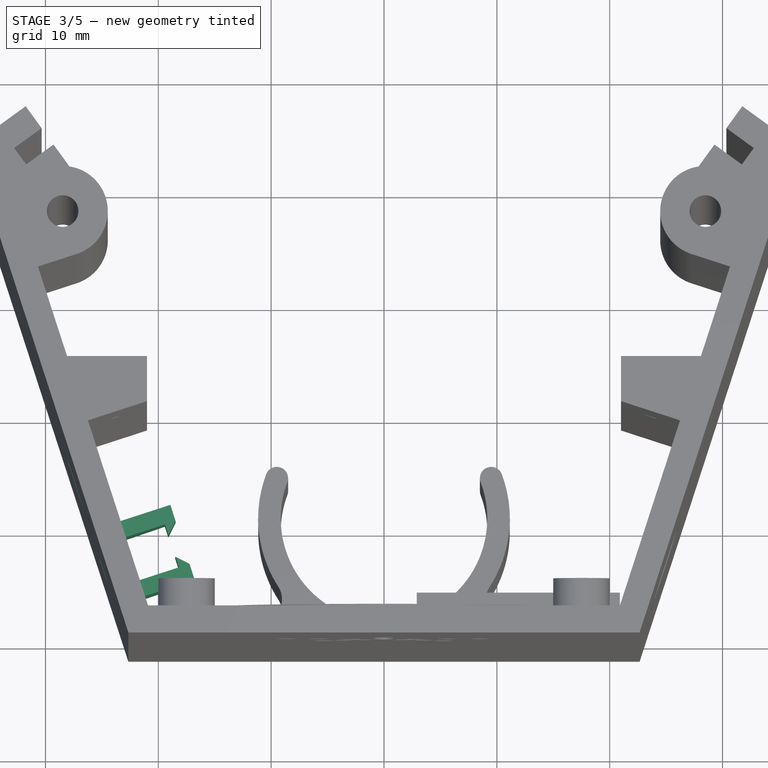
[diagram: stage 3 of 5 — top view after this stage's code; geometry added in this stage tinted green]
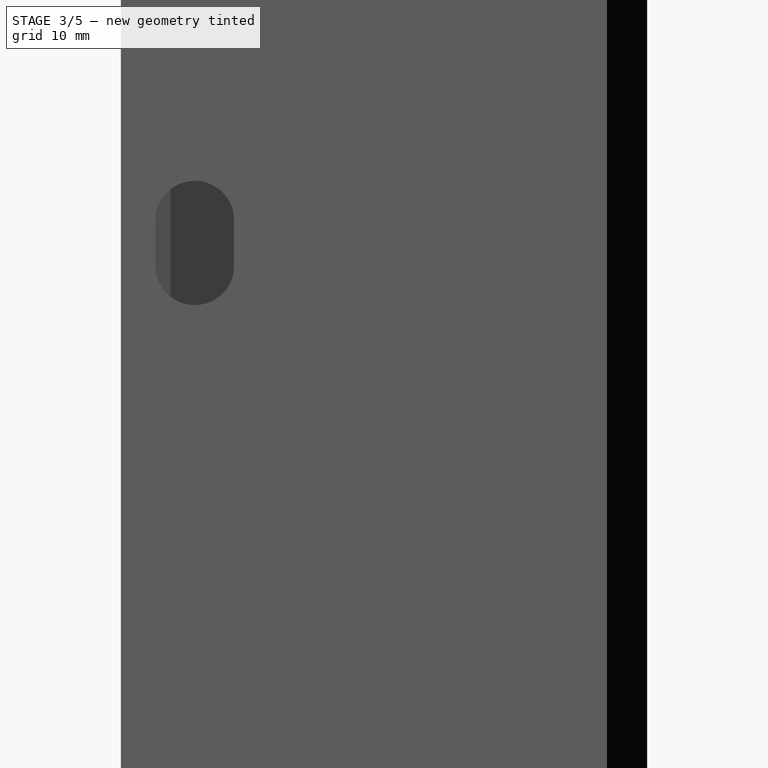
[diagram: stage 3 of 5 — right view after this stage's code; geometry added in this stage tinted green]
FEATURE [Sketcher::SketchObject] Sketch014
  ExternalGeometry = -> [PolarPattern]
  MapMode = 5
  Placement = pos=(-27.3686,-8.89261,0) rot=(0.456966,0.62896,0.62896;2.28433rad)
  Support = -> [PolarPattern]
  sketch-geometry (10):
    g0: LineSegment [constr] StartX=-3.66515 StartY=157 StartZ=0 EndX=-3.66515 EndY=82.5 EndZ=0
    g1: LineSegment [constr] StartX=-3.66515 StartY=82.5 StartZ=0 EndX=-3.66515 EndY=8 EndZ=0
    g2: LineSegment [constr] StartX=-20.9078 StartY=157 StartZ=0 EndX=-20.9078 EndY=82.5 EndZ=0
    g3: LineSegment [constr] StartX=-20.9078 StartY=82.5 StartZ=0 EndX=-20.9078 EndY=8 EndZ=0
    g4: LineSegment [constr] StartX=-3.66515 StartY=82.5 StartZ=0 EndX=-20.9078 EndY=82.5 EndZ=0
    g5: Circle CenterX=-7.66515 CenterY=82.5 CenterZ=0 NormalX=0 NormalY=0 NormalZ=1 AngleXU=0 Radius=2.75
    g6: LineSegment StartX=-14.4078 StartY=85 StartZ=0 EndX=-16.4078 EndY=85 EndZ=0
    g7: LineSegment StartX=-16.4078 StartY=85 StartZ=0 EndX=-16.4078 EndY=80 EndZ=0
    g8: LineSegment StartX=-16.4078 StartY=80 StartZ=0 EndX=-14.4078 EndY=80 EndZ=0
    g9: LineSegment StartX=-14.4078 StartY=80 StartZ=0 EndX=-14.4078 EndY=85 EndZ=0
  constraints (26):
    c: Coincident(g0,g-3)
    c: Coincident(g1,g0)
    c: Coincident(g1,g-4)
    c: Coincident(g2,g-3)
    c: Coincident(g3,g2)
    c: Coincident(g3,g-4)
    c: Equal(g2,g3)
    c: Equal(g1,g0)
    c: Vertical(g2)
    c: Vertical(g0)
    c: Coincident(g4,g0)
    c: Coincident(g4,g2)
    c: PointOnObject(g5,g4)
    c: Radius(g5) = 2.75
    c: DistanceX(g5,g0) = 4
    c: Coincident(g6,g7)
    c: Coincident(g7,g8)
    c: Coincident(g8,g9)
    c: Coincident(g9,g6)
    c: Horizontal(g6)
    c: Horizontal(g8)
    c: Vertical(g7)
    c: Symmetric(g8,g6,g4)
    c: DistanceX(g6,g6) = 2
    c: DistanceY(g9,g9) = 5
    c: DistanceX(g2,g6) = 4.5
FEATURE [PartDesign::Pocket] Pocket009
  BaseFeature = -> PolarPattern
  Length = 5
  Length2 = 100
  Profile = -> Sketch014
  Refine = true
  Type = 0
FEATURE [Sketcher::SketchObject] Sketch015
  ExternalGeometry = -> [Pocket009]
  MapMode = 5
  Placement = pos=(-27.3686,-8.89261,0) rot=(0.456966,0.62896,0.62896;2.28433rad)
  Support = -> [Pocket009]
  sketch-geometry (18):
    g0: LineSegment StartX=-11.9078 StartY=88.5 StartZ=0 EndX=-13.4078 EndY=88.5 EndZ=0
    g1: LineSegment StartX=-13.4078 StartY=88.5 StartZ=0 EndX=-13.4078 EndY=76.5 EndZ=0
    g2: LineSegment StartX=-13.4078 StartY=76.5 StartZ=0 EndX=-11.9078 EndY=76.5 EndZ=0
    g3: LineSegment StartX=-11.9078 StartY=76.5 StartZ=0 EndX=-11.9078 EndY=88.5 EndZ=0
    g4: LineSegment StartX=-17.4078 StartY=88.5 StartZ=0 EndX=-18.9078 EndY=88.5 EndZ=0
    g5: LineSegment StartX=-18.9078 StartY=88.5 StartZ=0 EndX=-18.9078 EndY=76.5 EndZ=0
    g6: LineSegment StartX=-18.9078 StartY=76.5 StartZ=0 EndX=-17.4078 EndY=76.5 EndZ=0
    g7: LineSegment StartX=-17.4078 StartY=76.5 StartZ=0 EndX=-17.4078 EndY=88.5 EndZ=0
    g8: LineSegment [constr] StartX=-14.4078 StartY=85 StartZ=0 EndX=-13.4078 EndY=85 EndZ=0
    g9: LineSegment [constr] StartX=-16.4078 StartY=85 StartZ=0 EndX=-17.4078 EndY=85 EndZ=0
    g10: LineSegment [constr] StartX=-17.4078 StartY=88.5 StartZ=0 EndX=-13.4078 EndY=88.5 EndZ=0
    g11: LineSegment [constr] StartX=-14.4078 StartY=85 StartZ=0 EndX=-15.4078 EndY=85 EndZ=0
    g12: LineSegment [constr] StartX=-16.4078 StartY=85 StartZ=0 EndX=-15.4078 EndY=85 EndZ=0
    g13: LineSegment [constr] StartX=-13.4078 StartY=76.5 StartZ=0 EndX=-17.4078 EndY=76.5 EndZ=0
    g14: LineSegment [constr] StartX=-15.4078 StartY=88.5 StartZ=0 EndX=-15.4078 EndY=82.5 EndZ=0
    g15: LineSegment [constr] StartX=-15.4078 StartY=82.5 StartZ=0 EndX=-15.4078 EndY=76.5 EndZ=0
    g16: LineSegment [constr] StartX=-14.4078 StartY=85 StartZ=0 EndX=-15.4078 EndY=82.5 EndZ=0
    g17: LineSegment [constr] StartX=-15.4078 StartY=82.5 StartZ=0 EndX=-14.4078 EndY=80 EndZ=0
  constraints (50):
    c: Coincident(g0,g1)
    c: Coincident(g1,g2)
    c: Coincident(g2,g3)
    c: Coincident(g3,g0)
    c: Horizontal(g0)
    c: Horizontal(g2)
    c: Vertical(g1)
    c: Vertical(g3)
    c: Coincident(g4,g5)
    c: Coincident(g5,g6)
    c: Coincident(g6,g7)
    c: Coincident(g7,g4)
    c: Horizontal(g4)
    c: Horizontal(g6)
    c: Vertical(g5)
    c: Vertical(g7)
    c: Coincident(g8,g-3)
    c: PointOnObject(g8,g1)
    c: Horizontal(g8)
    c: Coincident(g9,g-4)
    c: PointOnObject(g9,g7)
    c: Horizontal(g9)
    c: Coincident(g10,g4)
    c: Horizontal(g10)
    c: Equal(g7,g1)
    c: Equal(g8,g9)
    c: Equal(g4,g0)
    c: Coincident(g10,g0)
    c: DistanceX(g10,g10) = 4
    c: Coincident(g11,g8)
    c: Coincident(g12,g9)
    c: Coincident(g11,g12)
    c: Equal(g11,g12)
    c: Horizontal(g12)
    c: Coincident(g13,g1)
    c: Coincident(g13,g6)
    c: PointOnObject(g14,g10)
    c: Vertical(g14)
    c: Coincident(g15,g14)
    c: PointOnObject(g15,g13)
    c: Vertical(g15)
    c: PointOnObject(g11,g14)
    c: Equal(g15,g14)
    c: Coincident(g16,g8)
    c: Coincident(g16,g14)
    c: Coincident(g17,g14)
    c: Coincident(g17,g-3)
    c: Equal(g17,g16)
    c: DistanceX(g0,g0) = 1.5
    c: DistanceY(g3,g3) = 12
FEATURE [PartDesign::Pad] Pad005
  BaseFeature = -> Pocket009
  Length = 5
  Length2 = 100
  Profile = -> Sketch015
  Refine = true
  Type = 0
FEATURE [Sketcher::SketchObject] Sketch016
  ExternalGeometry = -> [Pad005]
  MapMode = 5
  Placement = pos=(-7.7e-15,7.8e-15,88.5) rot=(0,0,1;0rad)
  Support = -> [Pad005]
  sketch-geometry (6):
    g0: LineSegment StartX=-19.4212 StartY=-20.4081 StartZ=0 EndX=-19.1122 EndY=-21.3592 EndZ=0
    g1: LineSegment StartX=-19.1122 StartY=-21.3592 StartZ=0 EndX=-18.4701 EndY=-20.0991 EndZ=0
    g2: LineSegment StartX=-18.4701 StartY=-20.0991 StartZ=0 EndX=-19.4212 EndY=-20.4081 EndZ=0
    g3: LineSegment StartX=-18.1851 StartY=-24.2123 StartZ=0 EndX=-18.4941 EndY=-23.2613 EndZ=0
    g4: LineSegment StartX=-18.4941 StartY=-23.2613 StartZ=0 EndX=-17.2341 EndY=-23.9033 EndZ=0
    g5: LineSegment StartX=-17.2341 StartY=-23.9033 StartZ=0 EndX=-18.1851 EndY=-24.2123 EndZ=0
  constraints (16):
    c: PointOnObject(g0,g-4)
    c: Coincident(g0,g1)
    c: Coincident(g1,g-4)
    c: Coincident(g1,g2)
    c: Coincident(g2,g0)
    c: PointOnObject(g3,g-5)
    c: Coincident(g3,g4)
    c: Coincident(g4,g-5)
    c: Coincident(g4,g5)
    c: Coincident(g5,g3)
    c: Equal(g4,g1)
    c: Equal(g3,g0)
    c: Equal(g5,g2)
    c: Perpendicular(g3,g5)
    c: Distance(g5) = 1
    c: Equal(g3,g5)
FEATURE [PartDesign::Pad] Pad006
  BaseFeature = -> Pad005
  Length = 12
  Length2 = 100
  Profile = -> Sketch016
  Refine = true
  Reversed = true
  Type = 0
FEATURE [PartDesign::Chamfer] Chamfer
  Base = -> Pad006 [Edge78,Edge82]
  BaseFeature = -> Pad006
  Size = 4
FEATURE [PartDesign::Chamfer] Chamfer001
  Base = -> Chamfer [Edge113]
  BaseFeature = -> Chamfer
  Size = 1.99
FEATURE [PartDesign::Chamfer] Chamfer002
  Base = -> Chamfer001 [Edge7]
  BaseFeature = -> Chamfer001
  Size = 1.99
FEATURE [PartDesign::Chamfer] Chamfer003
  Base = -> Chamfer002 [Edge313,Edge316]
  BaseFeature = -> Chamfer002
  Size = 0.9
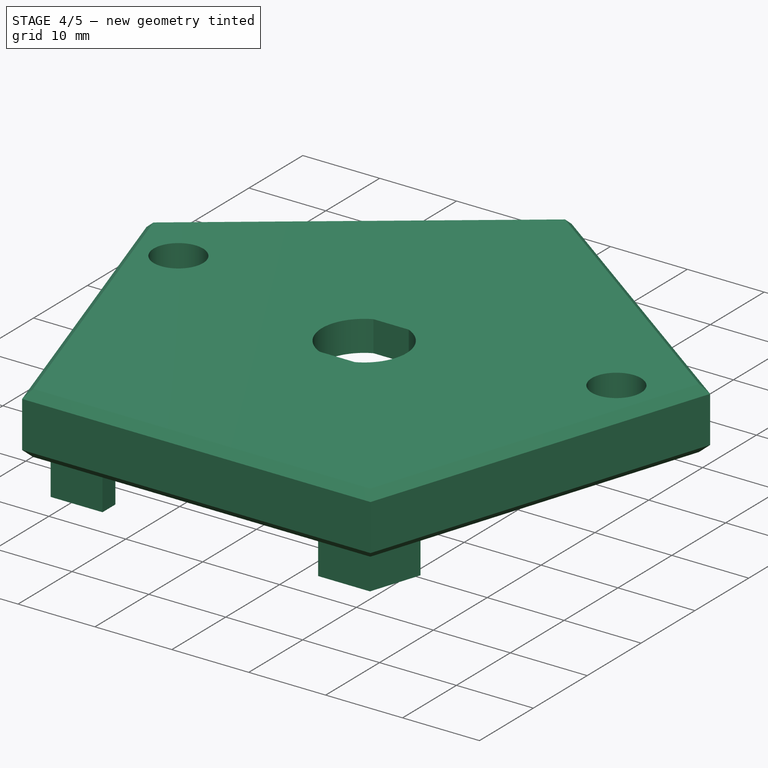
[diagram: stage 4 of 5 — iso view after this stage's code; geometry added in this stage tinted green]
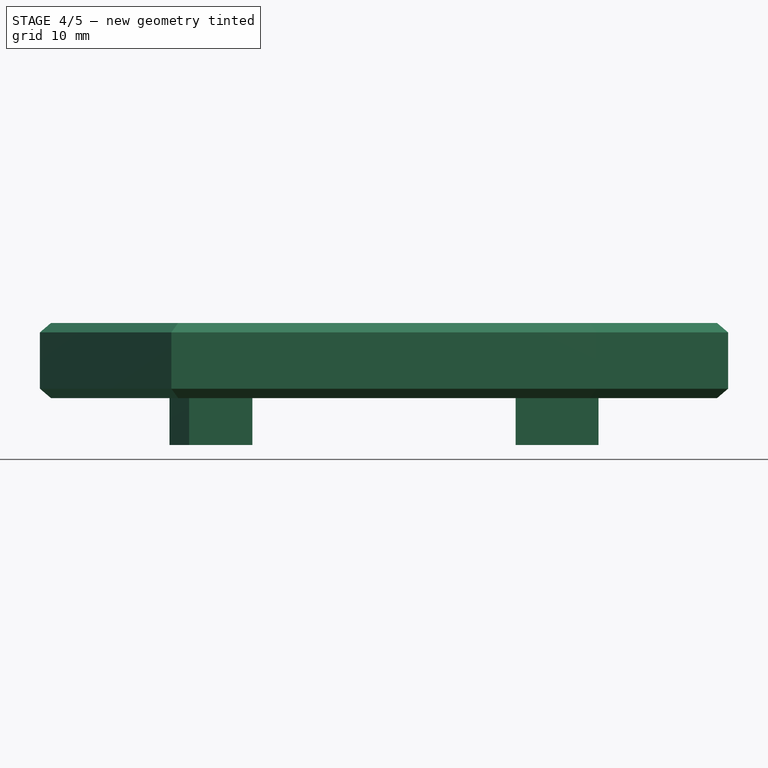
[diagram: stage 4 of 5 — front view after this stage's code; geometry added in this stage tinted green]
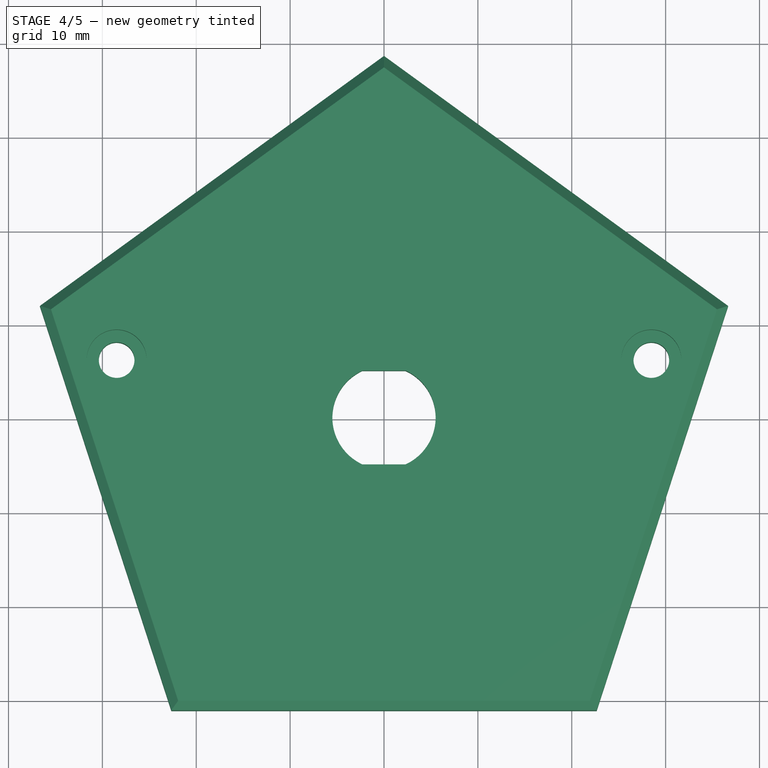
[diagram: stage 4 of 5 — top view after this stage's code; geometry added in this stage tinted green]
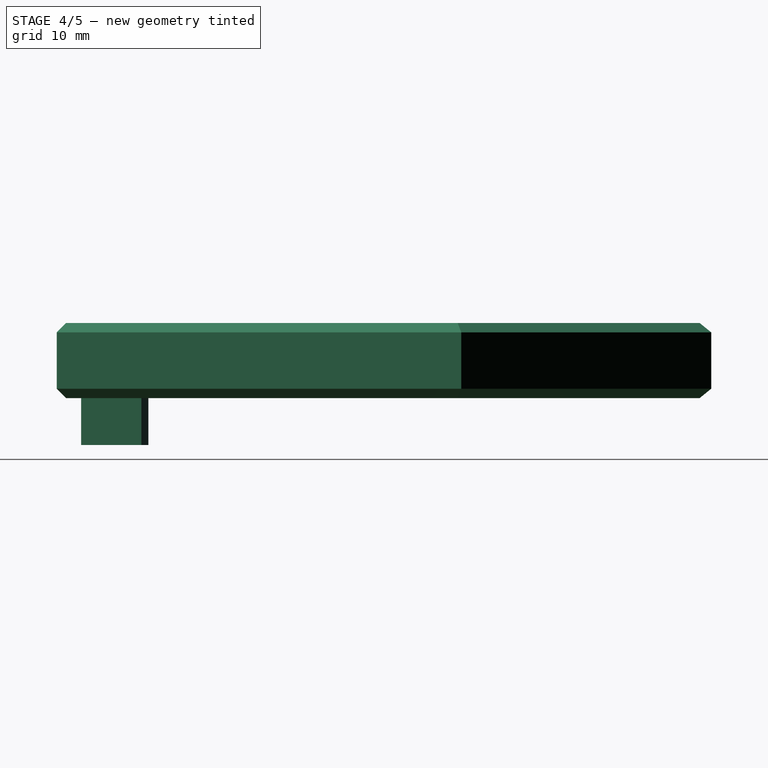
[diagram: stage 4 of 5 — right view after this stage's code; geometry added in this stage tinted green]
FEATURE [PartDesign::Chamfer] Chamfer004
  Base = -> Chamfer003 [Edge197,Edge200,Edge234,Edge231]
  BaseFeature = -> Chamfer003
  Size = 1
FEATURE [PartDesign::Body] Body001
  Group = -> [ShapeBinder,Sketch005,Pad001,Sketch006,Pocket004,Sketch007,Pocket005,Sketch008,Pad002,Sketch009,Pocket006,Sketch010,Pocket007,Sketch011,Pad003,Sketch012,Pad004,Sketch013,Pocket008,DatumLine,PolarPattern,Sketch014,Pocket009,Sketch015,Pad005,Sketch016,Pad006,Chamfer,Chamfer001,Chamfer002,Chamfer003,Chamfer004]
  Origin = -> Origin001
  Tip = -> Chamfer004
FEATURE [PartDesign::ShapeBinder] ShapeBinder001
  Support = -> [Chamfer004]
  TraceSupport = false
FEATURE [Sketcher::SketchObject] Sketch017
  ExternalGeometry = -> [ShapeBinder001]
  MapMode = 5
  Placement = pos=(0,0,157) rot=(0,0,1;0rad)
  Support = -> [ShapeBinder001]
  sketch-geometry (12):
    g0: LineSegment StartX=5.6843e-12 StartY=38.537 StartZ=0 EndX=-36.6509 EndY=11.9086 EndZ=0
    g1: LineSegment StartX=-36.6509 StartY=11.9086 StartZ=0 EndX=-22.6515 EndY=-31.1771 EndZ=0
    g2: LineSegment StartX=-22.6515 StartY=-31.1771 StartZ=0 EndX=22.6515 EndY=-31.1771 EndZ=0
    g3: LineSegment StartX=22.6515 StartY=-31.1771 StartZ=0 EndX=36.6509 EndY=11.9086 EndZ=0
    g4: LineSegment StartX=36.6509 StartY=11.9086 StartZ=0 EndX=5.6843e-12 EndY=38.537 EndZ=0
    g5: Circle [constr] CenterX=0 CenterY=0 CenterZ=0 NormalX=0 NormalY=0 NormalZ=1 AngleXU=0 Radius=38.537
    g6: Circle CenterX=-28.478 CenterY=6.17165 CenterZ=0 NormalX=0 NormalY=0 NormalZ=1 AngleXU=0 Radius=1.9
    g7: Circle CenterX=28.478 CenterY=6.17165 CenterZ=0 NormalX=0 NormalY=0 NormalZ=1 AngleXU=0 Radius=1.9
    g8: ArcOfCircle CenterX=0 CenterY=0 CenterZ=0 NormalX=0 NormalY=0 NormalZ=1 AngleXU=0 Radius=5.5 StartAngle=2.0005 EndAngle=4.28269
    g9: ArcOfCircle CenterX=0 CenterY=0 CenterZ=0 NormalX=0 NormalY=0 NormalZ=1 AngleXU=0 Radius=5.5 StartAngle=5.14209 EndAngle=7.42428
    g10: LineSegment StartX=-2.29129 StartY=5 StartZ=0 EndX=2.29129 EndY=5 EndZ=0
    g11: LineSegment StartX=-2.29129 StartY=-5 StartZ=0 EndX=2.29129 EndY=-5 EndZ=0
  constraints (28):
    c: Coincident(g0,g1)
    c: Coincident(g1,g2)
    c: Coincident(g2,g3)
    c: Coincident(g3,g4)
    c: Coincident(g4,g0)
    c: Equal(g0, g1-g4) x4
    c: PointOnObject(g0,g5)
    c: PointOnObject(g1,g5)
    c: PointOnObject(g2,g5)
    c: PointOnObject(g3,g5)
    c: PointOnObject(g4,g5)
    c: Coincident(g5,g-1)
    c: Coincident(g0,g-3)
    c: Coincident(g6,g-4)
    c: Coincident(g7,g-5)
    c: Radius(g7) = 1.9
    c: Equal(g7,g6)
    c: Coincident(g8,g-1)
    c: Coincident(g9,g8)
    c: Symmetric(g8,g9,g8)
    c: Coincident(g10,g8)
    c: Coincident(g10,g9)
    c: Horizontal(g10)
    c: Coincident(g11,g8)
    c: Horizontal(g11)
    c: Coincident(g9,g11)
    c: Radius(g8) = 5.5
    c: DistanceY(g8,g8) = 10
FEATURE [PartDesign::Pad] Pad007
  Length = 8
  Length2 = 100
  Profile = -> Sketch017
  Refine = true
  Type = 0
FEATURE [Sketcher::SketchObject] Sketch019
  ExternalGeometry = -> [ShapeBinder001]
  MapMode = 5
  Placement = pos=(0,0,157) rot=(1,0,0;3.14159rad)
  Support = -> [Pad007]
  sketch-geometry (14):
    g0: LineSegment StartX=-27.884 StartY=-1.10735 StartZ=0 EndX=-19.0188 EndY=26.1771 EndZ=0
    g1: LineSegment StartX=-19.0188 StartY=26.1771 StartZ=0 EndX=19.0188 EndY=26.1771 EndZ=0
    g2: LineSegment StartX=19.0188 StartY=26.1771 StartZ=0 EndX=27.884 EndY=-1.10735 EndZ=0
    g3: LineSegment StartX=-26.1053 StartY=-11.4123 StartZ=0 EndX=-7.1e-15 EndY=-30.3789 EndZ=0
    g4: LineSegment StartX=-6.2e-15 StartY=-30.3789 StartZ=0 EndX=26.1053 EndY=-11.4123 EndZ=0
    g5: LineSegment StartX=-27.884 StartY=-1.10735 StartZ=0 EndX=-26.933 EndY=-1.41637 EndZ=0
    g6: LineSegment StartX=27.884 StartY=-1.10735 StartZ=0 EndX=26.933 EndY=-1.41637 EndZ=0
    g7: LineSegment StartX=26.1053 StartY=-11.4123 StartZ=0 EndX=24.433 EndY=-9.11058 EndZ=0
    g8: LineSegment StartX=-26.1053 StartY=-11.4123 StartZ=0 EndX=-24.433 EndY=-9.11058 EndZ=0
    g9: ArcOfCircle CenterX=-28.478 CenterY=-6.17165 CenterZ=0 NormalX=0 NormalY=0 NormalZ=1 AngleXU=0 Radius=5 StartAngle=5.65487 EndAngle=7.53982
    g10: ArcOfCircle CenterX=28.478 CenterY=-6.17165 CenterZ=0 NormalX=0 NormalY=0 NormalZ=1 AngleXU=0 Radius=5 StartAngle=1.88496 EndAngle=3.76991
    g11: LineSegment [constr] StartX=-23.774 StartY=27.7222 StartZ=0 EndX=-19.0188 EndY=26.1771 EndZ=0
    g12: LineSegment [constr] StartX=31.7135 StartY=-10.3043 StartZ=0 EndX=-3.6e-15 EndY=-33.3455 EndZ=0
    g13: LineSegment [constr] StartX=26.1053 StartY=-11.4123 StartZ=0 EndX=27.516 EndY=-13.354 EndZ=0
  constraints (37):
    c: Coincident(g0,g5)
    c: Coincident(g8,g3)
    c: Coincident(g0,g1)
    c: Coincident(g4,g3)
    c: Coincident(g2,g1)
    c: Coincident(g4,g7)
    c: Coincident(g6,g2)
    c: PointOnObject(g11,g-6)
    c: Perpendicular(g-6,g11)
    c: Coincident(g0,g11)
    c: Perpendicular(g0,g5)
    c: Perpendicular(g3,g8)
    c: Perpendicular(g2,g6)
    c: Symmetric(g1,g0,g-2)
    c: Parallel(g0,g-6)
    c: Parallel(g2,g-7)
    c: Equal(g8,g7)
    c: Equal(g4,g3)
    c: Equal(g0,g2)
    c: DistanceY(g0,g-6) = 5
    c: Distance(g11) = 5
    c: Coincident(g9,g-4)
    c: Coincident(g10,g-3)
    c: Radius(g9) = 5
    c: Tangent(g9,g8) = -1.5708
    c: Tangent(g9,g5) = 1.5708
    c: Tangent(g6,g10) = -1.5708
    c: Tangent(g7,g10) = 1.5708
    c: Parallel(g-8,g4)
    c: Perpendicular(g4,g7)
    c: Coincident(g12,g-8)
    c: PointOnObject(g12,g-2)
    c: Coincident(g13,g4)
    c: PointOnObject(g13,g12)
    c: PointOnObject(g-8,g12)
    c: Perpendicular(g4,g13)
    c: Distance(g13) = 2.4
FEATURE [Sketcher::SketchObject] Sketch020
  ExternalGeometry = -> [ShapeBinder001]
  MapMode = 5
  Placement = pos=(0,0,157) rot=(1,0,0;3.14159rad)
  sketch-geometry (6):
    g0: LineSegment StartX=-31.7135 StartY=-10.3043 StartZ=0 EndX=0 EndY=-33.3455 EndZ=0
    g1: LineSegment StartX=0 StartY=-33.3455 StartZ=0 EndX=31.7135 EndY=-10.3043 EndZ=0
    g2: LineSegment StartX=31.7135 StartY=-10.3043 StartZ=0 EndX=32.7715 EndY=-11.7606 EndZ=0
    g3: LineSegment StartX=32.7715 StartY=-11.7606 StartZ=0 EndX=0 EndY=-35.5704 EndZ=0
    g4: LineSegment StartX=0 StartY=-35.5704 StartZ=0 EndX=-32.7715 EndY=-11.7606 EndZ=0
    g5: LineSegment StartX=-32.7715 StartY=-11.7606 StartZ=0 EndX=-31.7135 EndY=-10.3043 EndZ=0
  constraints (14):
    c: PointOnObject(g0,g-2)
    c: Coincident(g0,g1)
    c: Coincident(g1,g2)
    c: Coincident(g2,g3)
    c: PointOnObject(g3,g-2)
    c: Coincident(g3,g4)
    c: Coincident(g4,g5)
    c: Coincident(g5,g0)
    c: Coincident(g0,g-4)
    c: PointOnObject(g-4,g0)
    c: Coincident(g4,g-3)
    c: PointOnObject(g-3,g4)
    c: Coincident(g1,g-5)
    c: Coincident(g2,g-5)
FEATURE [PartDesign::Pocket] Pocket010
  BaseFeature = -> Pad007
  Length = 3
  Length2 = 100
  Profile = -> Sketch019
  Refine = true
  Type = 0
FEATURE [Sketcher::SketchObject] CopySketch020
  Placement = pos=(0,0,157) rot=(1,0,0;3.14159rad)
  sketch-geometry (6):
    g0: LineSegment StartX=-31.7135 StartY=-10.3043 StartZ=0 EndX=0 EndY=-33.3455 EndZ=0
    g1: LineSegment StartX=0 StartY=-33.3455 StartZ=0 EndX=31.7135 EndY=-10.3043 EndZ=0
    g2: LineSegment StartX=31.7135 StartY=-10.3043 StartZ=0 EndX=32.7715 EndY=-11.7606 EndZ=0
    g3: LineSegment StartX=32.7715 StartY=-11.7606 StartZ=0 EndX=0 EndY=-35.5704 EndZ=0
    g4: LineSegment StartX=0 StartY=-35.5704 StartZ=0 EndX=-32.7715 EndY=-11.7606 EndZ=0
    g5: LineSegment StartX=-32.7715 StartY=-11.7606 StartZ=0 EndX=-31.7135 EndY=-10.3043 EndZ=0
  constraints (8):
    c: PointOnObject(g0,g-2)
    c: Coincident(g0,g1)
    c: Coincident(g1,g2)
    c: Coincident(g2,g3)
    c: PointOnObject(g3,g-2)
    c: Coincident(g3,g4)
    c: Coincident(g4,g5)
    c: Coincident(g5,g0)
FEATURE [PartDesign::Pocket] Pocket011
  BaseFeature = -> Pocket010
  Length = 4
  Length2 = 100
  Profile = -> CopySketch020
  Refine = true
  Type = 0
FEATURE [Sketcher::SketchObject] Sketch021
  MapMode = 5
  Placement = pos=(0,0,160) rot=(1,0,0;3.14159rad)
  Support = -> [Pocket011]
  sketch-geometry (4):
    g0: LineSegment StartX=-8.1 StartY=8.1 StartZ=0 EndX=8.1 EndY=8.1 EndZ=0
    g1: LineSegment StartX=8.1 StartY=8.1 StartZ=0 EndX=8.1 EndY=-8.1 EndZ=0
    g2: LineSegment StartX=8.1 StartY=-8.1 StartZ=0 EndX=-8.1 EndY=-8.1 EndZ=0
    g3: LineSegment StartX=-8.1 StartY=-8.1 StartZ=0 EndX=-8.1 EndY=8.1 EndZ=0
  constraints (11):
    c: Coincident(g0,g1)
    c: Coincident(g1,g2)
    c: Coincident(g2,g3)
    c: Coincident(g3,g0)
    c: Horizontal(g0)
    c: Horizontal(g2)
    c: Vertical(g1)
    c: Vertical(g3)
    c: Symmetric(g1,g0,g-1)
    c: Equal(g0,g1)
    c: DistanceX(g0,g0) = 16.2
FEATURE [PartDesign::Pocket] Pocket012
  BaseFeature = -> Pocket011
  Length = 1
  Length2 = 100
  Profile = -> Sketch021
  Refine = true
  Type = 0
FEATURE [Sketcher::SketchObject] Sketch022
  ExternalGeometry = -> [Pocket012]
  MapMode = 5
  Placement = pos=(0,0,165) rot=(0,0,1;0rad)
  Support = -> [Pocket012]
  sketch-geometry (2):
    g0: Circle CenterX=-28.478 CenterY=6.17165 CenterZ=0 NormalX=0 NormalY=0 NormalZ=1 AngleXU=0 Radius=3.2
    g1: Circle CenterX=28.478 CenterY=6.17165 CenterZ=0 NormalX=0 NormalY=0 NormalZ=1 AngleXU=0 Radius=3.2
  constraints (4):
    c: Coincident(g0,g-3)
    c: Coincident(g1,g-4)
    c: Equal(g0,g1)
    c: Radius(g0) = 3.2
FEATURE [PartDesign::Pocket] Pocket013
  BaseFeature = -> Pocket012
  Length = 3
  Length2 = 100
  Profile = -> Sketch022
  Refine = true
  Type = 0
FEATURE [Sketcher::SketchObject] Sketch023
  ExternalGeometry = -> [Pocket013,ShapeBinder001]
  MapMode = 5
  Placement = pos=(0,0,157) rot=(1,0,0;3.14159rad)
  Support = -> [Pocket013]
  sketch-geometry (12):
    g0: LineSegment StartX=-20.5639 StartY=21.4218 StartZ=0 EndX=-19.0188 EndY=26.1771 EndZ=0
    g1: LineSegment StartX=-19.0188 StartY=26.1771 StartZ=0 EndX=-14.0188 EndY=26.1771 EndZ=0
    g2: LineSegment StartX=-14.0188 StartY=26.1771 StartZ=0 EndX=-14.0188 EndY=28.5771 EndZ=0
    g3: LineSegment StartX=-14.0188 StartY=28.5771 StartZ=0 EndX=-20.7625 EndY=28.5771 EndZ=0
    g4: LineSegment StartX=-20.7625 StartY=28.5771 StartZ=0 EndX=-22.8464 EndY=22.1634 EndZ=0
    g5: LineSegment StartX=-22.8464 StartY=22.1634 StartZ=0 EndX=-20.5639 EndY=21.4218 EndZ=0
    g6: LineSegment StartX=14.0188 StartY=26.1771 StartZ=0 EndX=19.0188 EndY=26.1771 EndZ=0
    g7: LineSegment StartX=19.0188 StartY=26.1771 StartZ=0 EndX=20.5639 EndY=21.4218 EndZ=0
    g8: LineSegment StartX=20.5639 StartY=21.4218 StartZ=0 EndX=22.8464 EndY=22.1634 EndZ=0
    g9: LineSegment StartX=22.8464 StartY=22.1634 StartZ=0 EndX=20.7625 EndY=28.5771 EndZ=0
    g10: LineSegment StartX=20.7625 StartY=28.5771 StartZ=0 EndX=14.0188 EndY=28.5771 EndZ=0
    g11: LineSegment StartX=14.0188 StartY=28.5771 StartZ=0 EndX=14.0188 EndY=26.1771 EndZ=0
  constraints (34):
    c: PointOnObject(g0,g-4)
    c: Coincident(g0,g-4)
    c: Coincident(g0,g1)
    c: PointOnObject(g1,g-3)
    c: Coincident(g1,g2)
    c: Vertical(g2)
    c: Coincident(g2,g3)
    c: Coincident(g4,g5)
    c: Coincident(g5,g0)
    c: PointOnObject(g6,g-3)
    c: Coincident(g6,g-7)
    c: Coincident(g6,g7)
    c: PointOnObject(g7,g-7)
    c: Coincident(g7,g8)
    c: Coincident(g8,g9)
    c: Coincident(g10,g11)
    c: Coincident(g11,g6)
    c: Equal(g7,g6)
    c: Equal(g6,g1)
    c: Equal(g1,g0)
    c: Perpendicular(g7,g8)
    c: Perpendicular(g5,g0)
    c: Vertical(g11)
    c: Coincident(g3,g4)
    c: Coincident(g9,g10)
    c: Parallel(g10,g-6)
    c: Parallel(g3,g-6)
    c: Equal(g2,g11)
    c: Equal(g11,g8)
    c: Equal(g8,g5)
    c: Parallel(g9,g-8)
    c: Equal(g4,g3)
    c: DistanceY(g3,g-6) = 0.2
    c: DistanceX(g1,g1) = 5
FEATURE [PartDesign::Pad] Pad008
  BaseFeature = -> Pocket013
  Length = 5
  Length2 = 100
  Profile = -> Sketch023
  Refine = true
  Type = 0
FEATURE [PartDesign::Chamfer] Chamfer005
  Base = -> Pad008 [Edge6,Edge3,Edge11,Edge12,Edge9,Edge7,Edge40,Edge4,Edge10,Edge41]
  BaseFeature = -> Pad008
  Size = 1
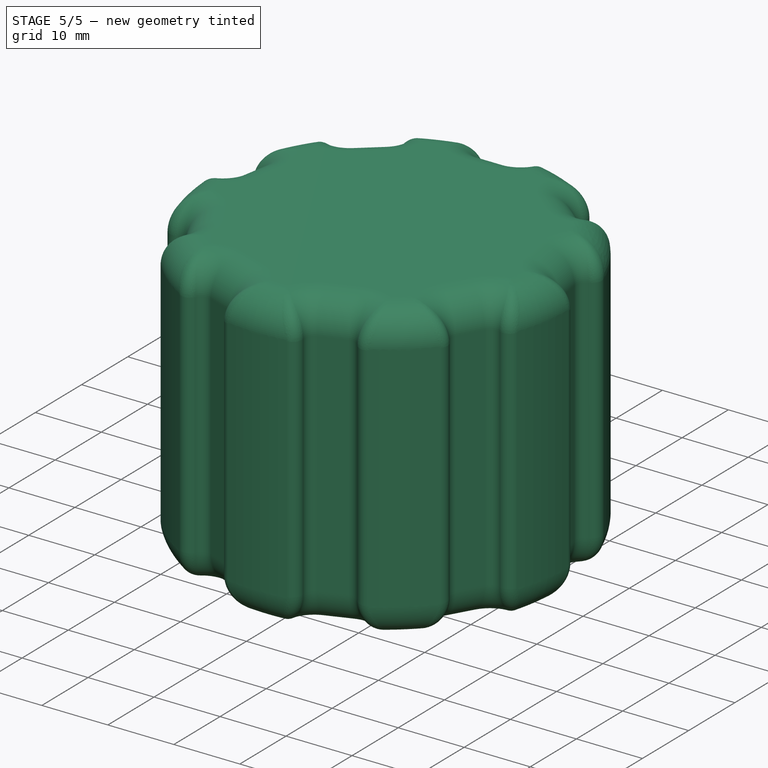
[diagram: stage 5 of 5 — iso view after this stage's code; geometry added in this stage tinted green]
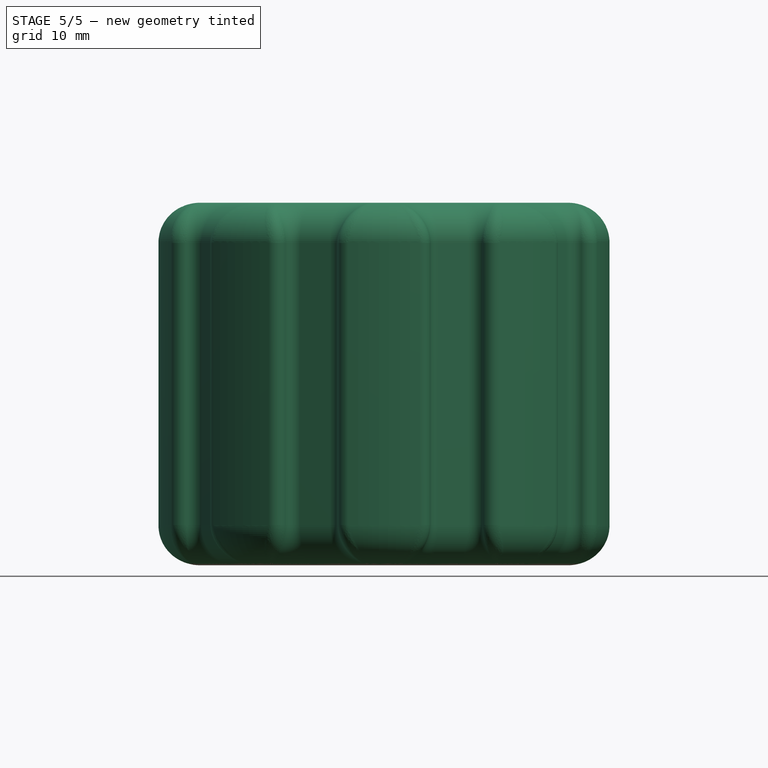
[diagram: stage 5 of 5 — front view after this stage's code; geometry added in this stage tinted green]
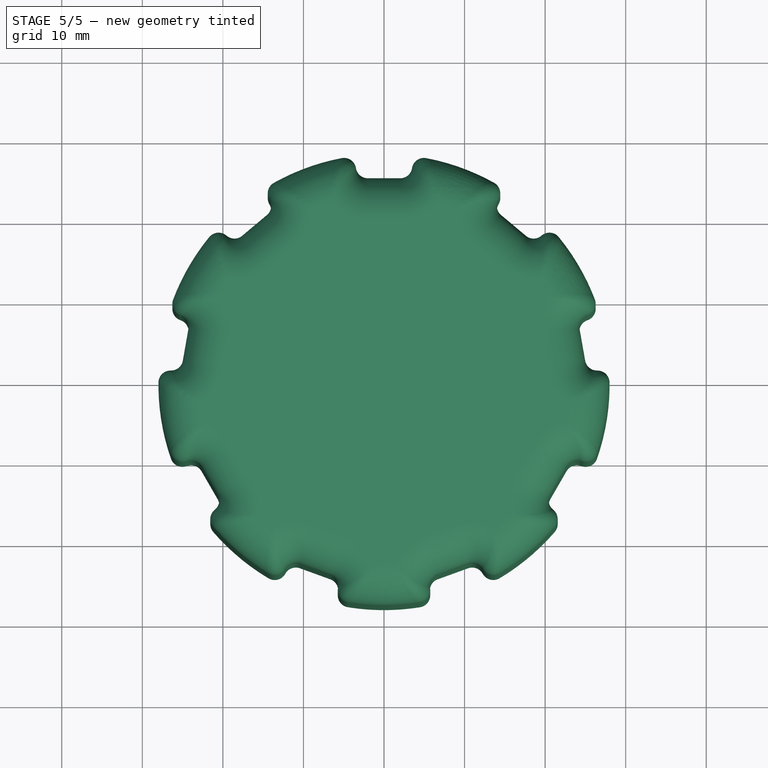
[diagram: stage 5 of 5 — top view after this stage's code; geometry added in this stage tinted green]
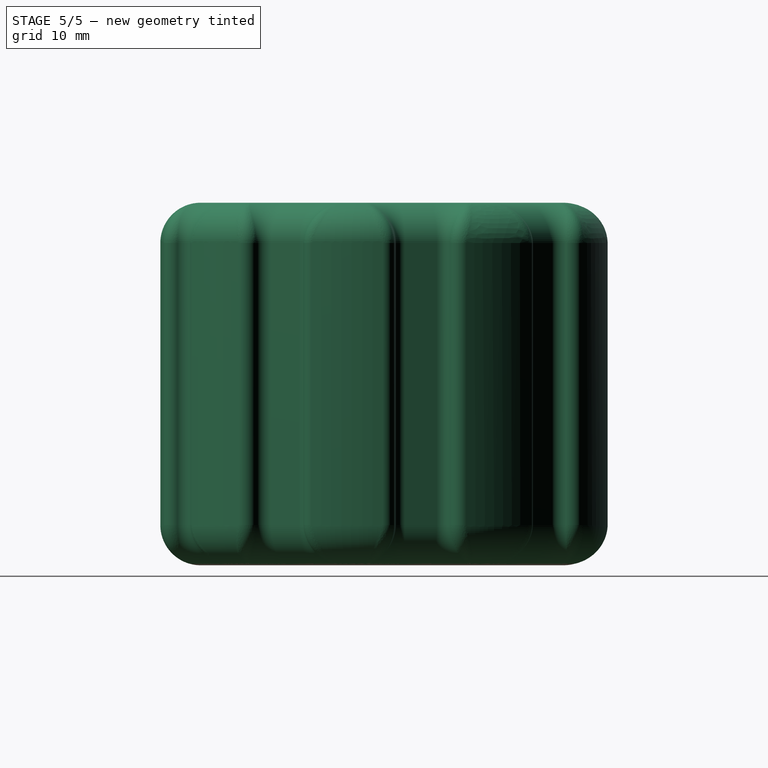
[diagram: stage 5 of 5 — right view after this stage's code; geometry added in this stage tinted green]
FEATURE [PartDesign::Body] Body002
  Group = -> [ShapeBinder001,Sketch017,Pad007,Sketch019,Pocket010,Pocket011,Sketch021,Pocket012,Sketch022,Pocket013,Sketch023,Pad008,Chamfer005]
  Origin = -> Origin002
  Tip = -> Chamfer005
FEATURE [PartDesign::ShapeBinder] ShapeBinder002
  Support = -> [Chamfer005]
  TraceSupport = false
FEATURE [Sketcher::SketchObject] Sketch024
  ExternalGeometry = -> [ShapeBinder002]
  MapMode = 5
  Placement = pos=(0,0,165) rot=(0,0,1;0rad)
  Support = -> [ShapeBinder002]
  sketch-geometry (1):
    g0: Circle CenterX=0 CenterY=0 CenterZ=0 NormalX=0 NormalY=0 NormalZ=1 AngleXU=0 Radius=28
  constraints (2):
    c: Coincident(g0,g-1)
    c: Radius(g0) = 28
FEATURE [PartDesign::Pad] Pad009
  Length = 45
  Length2 = 100
  Profile = -> Sketch024
  Refine = true
  Type = 0
FEATURE [Sketcher::SketchObject] Sketch025
  MapMode = 5
  Placement = pos=(0,0,165) rot=(1,0,0;3.14159rad)
  Support = -> [Pad009]
  sketch-geometry (1):
    g0: Circle CenterX=0 CenterY=0 CenterZ=0 NormalX=0 NormalY=0 NormalZ=1 AngleXU=0 Radius=3.1
  constraints (2):
    c: Coincident(g0,g-1)
    c: Radius(g0) = 3.1
FEATURE [PartDesign::Pocket] Pocket014
  BaseFeature = -> Pad009
  Length = 40
  Length2 = 100
  Profile = -> Sketch025
  Refine = true
  Type = 0
FEATURE [Sketcher::SketchObject] Sketch026
  MapMode = 5
  Placement = pos=(0,0,165) rot=(1,0,0;3.14159rad)
  Support = -> [Pocket014]
  sketch-geometry (1):
    g0: Circle CenterX=0 CenterY=0 CenterZ=0 NormalX=0 NormalY=0 NormalZ=1 AngleXU=0 Radius=10
  constraints (2):
    c: Coincident(g0,g-1)
    c: Radius(g0) = 10
FEATURE [PartDesign::Pocket] Pocket015
  BaseFeature = -> Pocket014
  Length = 7
  Length2 = 100
  Profile = -> Sketch026
  Refine = true
  Type = 0
FEATURE [Sketcher::SketchObject] Sketch027
  ExternalGeometry = -> [Pocket015]
  MapMode = 5
  Placement = pos=(0,0,210) rot=(0,0,1;0rad)
  Support = -> [Pocket015]
  sketch-geometry (8):
    g0: ArcOfCircle CenterX=4.96313 CenterY=26.0311 CenterZ=0 NormalX=0 NormalY=0 NormalZ=1 AngleXU=0 Radius=1.5 StartAngle=1.38239 EndAngle=2.98464
    g1: ArcOfCircle CenterX=-4.96313 CenterY=26.0311 CenterZ=0 NormalX=0 NormalY=0 NormalZ=1 AngleXU=0 Radius=1.5 StartAngle=0.156949 EndAngle=1.75919
    g2: LineSegment StartX=-2 StartY=25 StartZ=0 EndX=2 EndY=25 EndZ=0
    g3: ArcOfCircle CenterX=-2 CenterY=26.5 CenterZ=0 NormalX=0 NormalY=0 NormalZ=1 AngleXU=0 Radius=1.5 StartAngle=3.29854 EndAngle=4.71239
    g4: ArcOfCircle CenterX=2 CenterY=26.5 CenterZ=0 NormalX=0 NormalY=0 NormalZ=1 AngleXU=0 Radius=1.5 StartAngle=4.71239 EndAngle=6.12624
    g5: LineSegment StartX=-5.24405 StartY=27.5045 StartZ=0 EndX=-5.24405 EndY=29.5045 EndZ=0
    g6: LineSegment StartX=-5.24405 StartY=29.5045 StartZ=0 EndX=5.24407 EndY=29.5045 EndZ=0
    g7: LineSegment StartX=5.24407 StartY=29.5045 StartZ=0 EndX=5.24407 EndY=27.5045 EndZ=0
  constraints (23):
    c: Equal(g1,g0)
    c: Equal(g3,g4)
    c: Tangent(g3,g1) = 1.5708
    c: Tangent(g4,g0) = 1.5708
    c: Tangent(g3,g2) = -1.5708
    c: Tangent(g4,g2) = -1.5708
    c: PointOnObject(g1,g-3)
    c: Tangent(g1,g-3)
    c: PointOnObject(g0,g-3)
    c: Symmetric(g2,g2,g-2)
    c: Radius(g4) = 1.5
    c: Tangent(g0,g-3)
    c: Radius(g1) = 1.5
    c: DistanceX(g2,g2) = 4
    c: DistanceY(g-1,g2) = 25
    c: Coincident(g1,g5)
    c: Coincident(g5,g6)
    c: Horizontal(g6)
    c: Coincident(g6,g7)
    c: Coincident(g7,g0)
    c: Vertical(g7)
    c: Vertical(g5)
    c: DistanceY(g7,g7) = 2
FEATURE [PartDesign::Pocket] Pocket016
  BaseFeature = -> Pocket015
  Length = 45
  Length2 = 100
  Profile = -> Sketch027
  Refine = true
  Type = 0
FEATURE [PartDesign::PolarPattern] PolarPattern001
  Angle = 360
  Axis = -> Sketch027 [N_Axis]
  BaseFeature = -> Pocket016
  Occurrences = 9
  Originals = -> [Pocket016]
  Refine = true
FEATURE [PartDesign::Fillet] Fillet
  Base = -> PolarPattern001 [Face57]
  BaseFeature = -> PolarPattern001
  Radius = 5
FEATURE [PartDesign::Fillet] Fillet001
  Base = -> Fillet [Edge29]
  BaseFeature = -> Fillet
  Radius = 5
FEATURE [PartDesign::Body] Body003
  Group = -> [ShapeBinder002,Sketch024,Pad009,Sketch025,Pocket014,Sketch026,Pocket015,Sketch027,Pocket016,PolarPattern001,Fillet,Fillet001]
  Origin = -> Origin003
  Tip = -> Fillet001
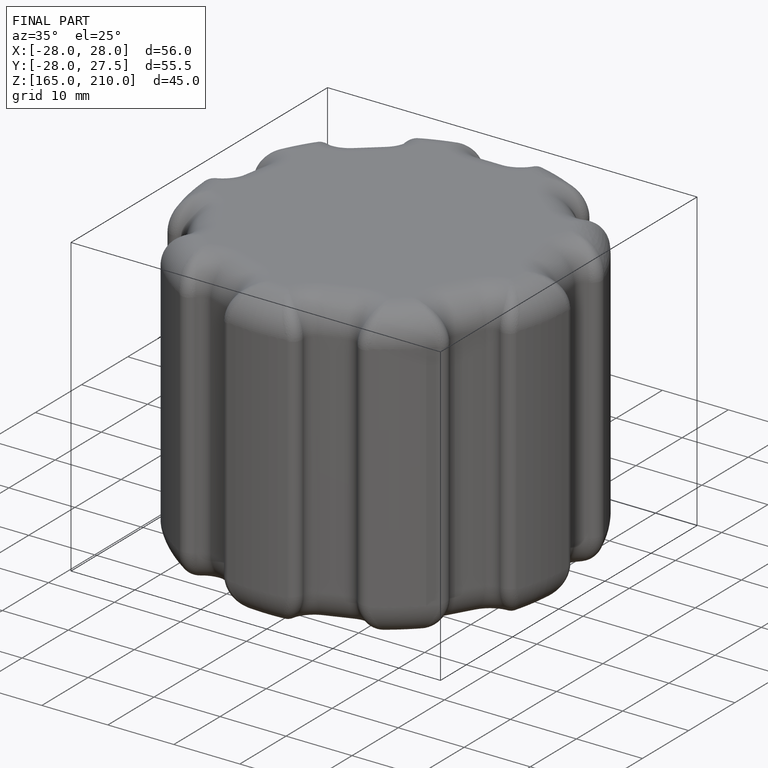
[diagram: finished part — iso view with bounding-box wireframe]
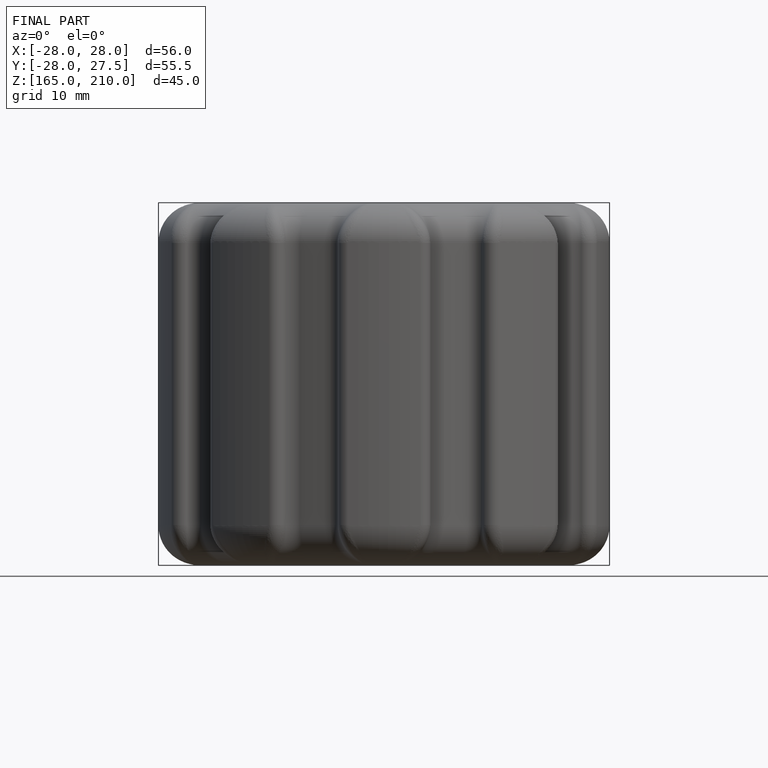
[diagram: finished part — front view with bounding-box wireframe]
